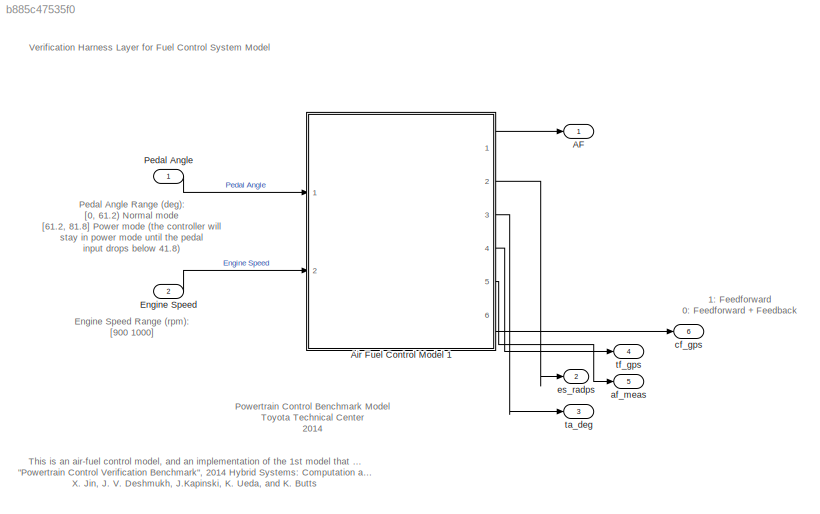
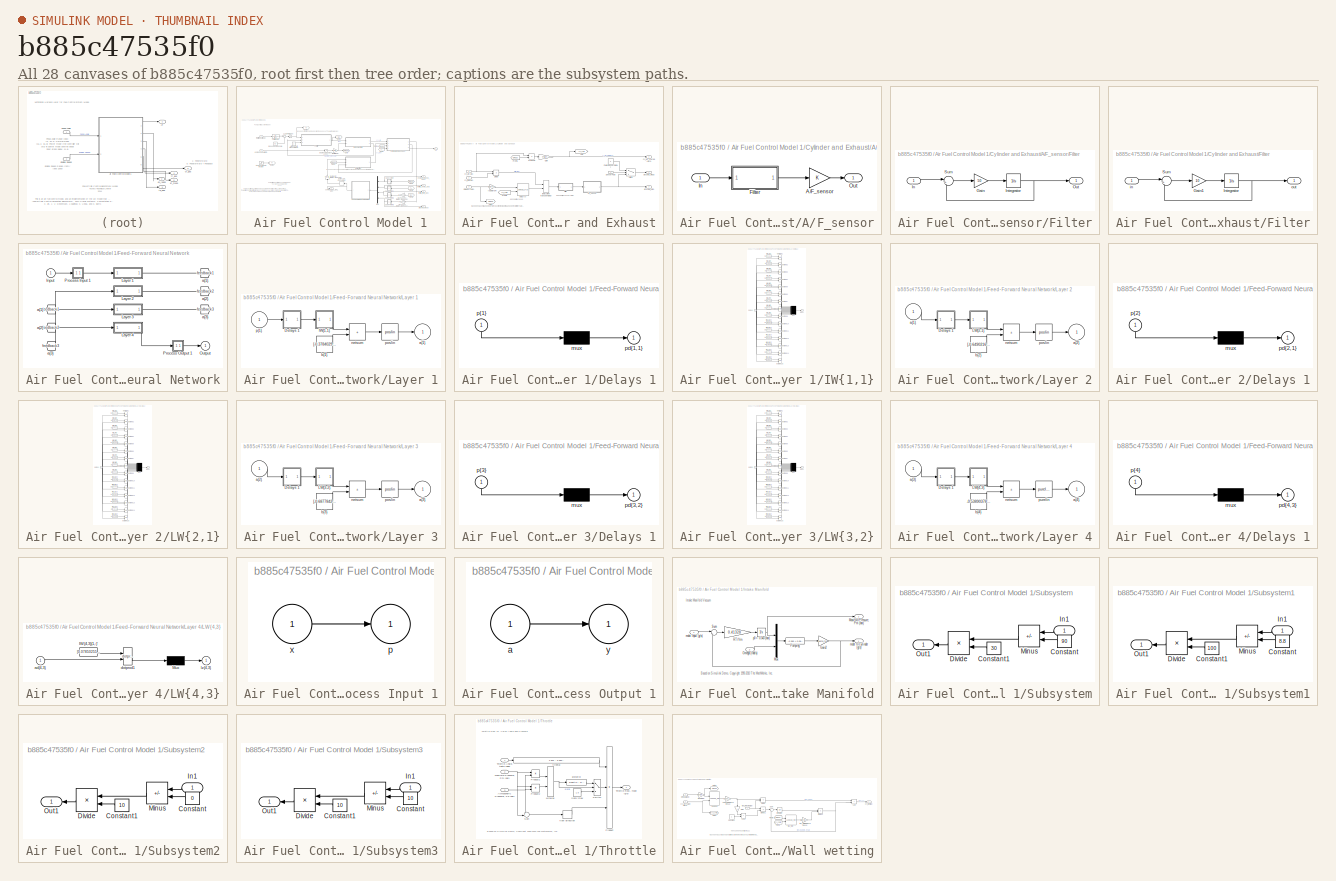
[diagram: thumbnail index - all 28 canvases of the model, root first then tree order]
MODEL slx_b885c47535f0
KIND model
CONFIG AbsTol = auto
CONFIG EnableMultiTasking = off
CONFIG FixedStep = auto
CONFIG MaxStep = .01
CONFIG MinStep = auto
CONFIG RelTol = 1e-3
CONFIG SampleTimeConstraint = Unconstrained
CONFIG Solver = ode15s
CONFIG SolverMode = SingleTasking
CONFIG SolverName = ode15s
CONFIG StartTime = 0.0
CONFIG StopTime = T
BLOCK [Outport] AF
  VectorParamsAs1DForOutWhenUnconnected = off
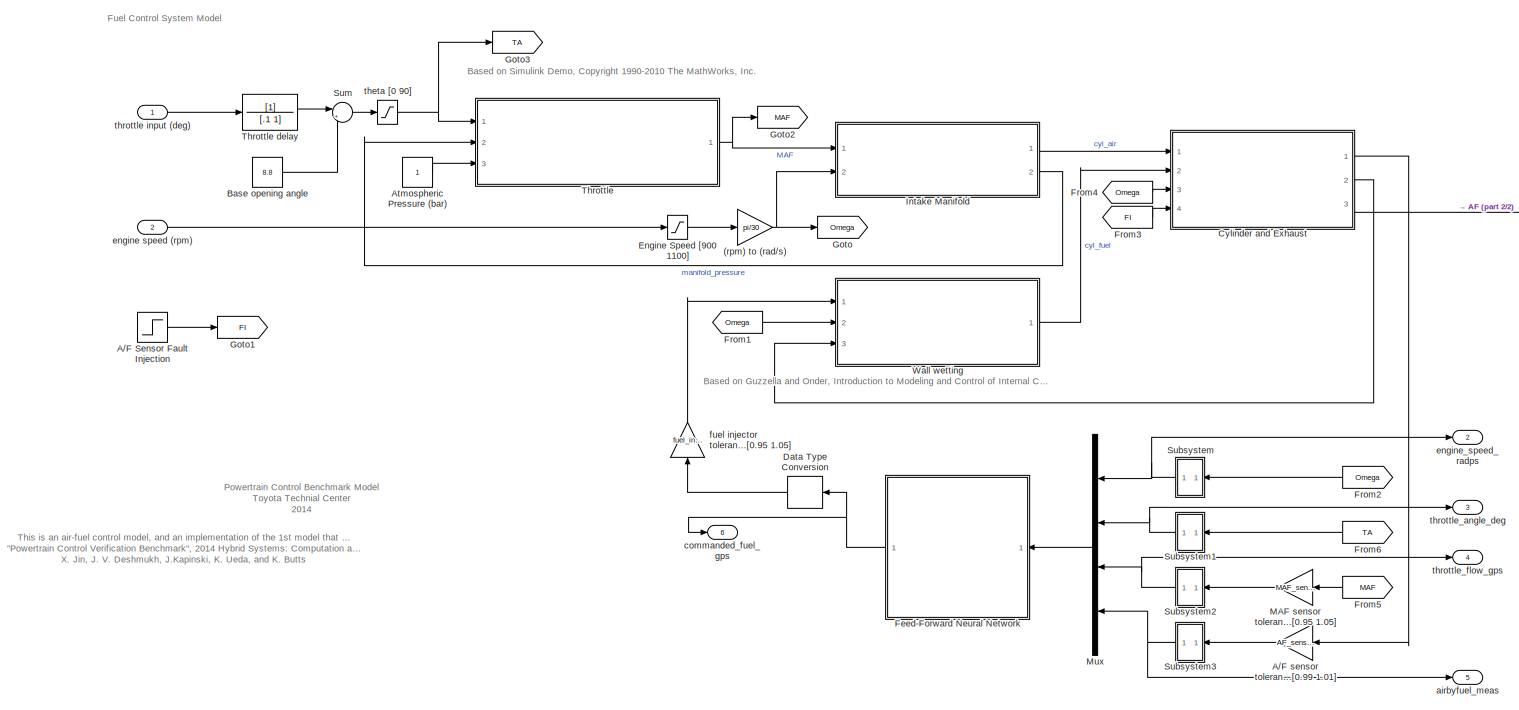
[diagram: Air Fuel Control Model 1 - part 1/2, most of the canvas]
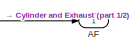
[diagram: Air Fuel Control Model 1 - part 2/2, top right region]
BLOCK [SubSystem] Air Fuel Control Model 1
  Ports = [2, 6]
  Priority = 1
  RequestExecContextInheritance = off
  TreatAsAtomicUnit = on
BLOCK [Gain] Air Fuel Control Model 1/(rpm) to (rad//s)
  Gain = pi/30
BLOCK [Step] Air Fuel Control Model 1/A//F Sensor Fault Injection
  AttributesFormatString = 1: Failure\n0: Normal
  SampleTime = 0
  Time = fault_time
BLOCK [Gain] Air Fuel Control Model 1/A//F sensor tolerance [0.99 1.01]
  Gain = AF_sensor_tol
BLOCK [Outport] Air Fuel Control Model 1/AF
  VectorParamsAs1DForOutWhenUnconnected = off
BLOCK [Constant] Air Fuel Control Model 1/Atmospheric Pressure (bar)
BLOCK [Constant] Air Fuel Control Model 1/Base opening angle
  Value = 8.8
BLOCK [SubSystem] Air Fuel Control Model 1/Cylinder and Exhaust
  Ports = [4, 3]
  RequestExecContextInheritance = off
BLOCK [SubSystem] Air Fuel Control Model 1/Cylinder and Exhaust/A//F_sensor
  Ports = [1, 1]
  RequestExecContextInheritance = off
BLOCK [Gain] Air Fuel Control Model 1/Cylinder and Exhaust/A//F_sensor/A//F_sensor
  OutDataTypeStr = double
BLOCK [SubSystem] Air Fuel Control Model 1/Cylinder and Exhaust/A//F_sensor/Filter
  Ports = [1, 1]
  RequestExecContextInheritance = off
BLOCK [Gain] Air Fuel Control Model 1/Cylinder and Exhaust/A//F_sensor/Filter/Gain
  Gain = 50
BLOCK [Inport] Air Fuel Control Model 1/Cylinder and Exhaust/A//F_sensor/Filter/In
BLOCK [Integrator] Air Fuel Control Model 1/Cylinder and Exhaust/A//F_sensor/Filter/Integrator
  InitialCondition = 14.7
  Ports = [1, 1]
BLOCK [Outport] Air Fuel Control Model 1/Cylinder and Exhaust/A//F_sensor/Filter/Out
  VectorParamsAs1DForOutWhenUnconnected = off
BLOCK [Sum] Air Fuel Control Model 1/Cylinder and Exhaust/A//F_sensor/Filter/Sum
  Inputs = |+-
  Ports = [2, 1]
BLOCK [Inport] Air Fuel Control Model 1/Cylinder and Exhaust/A//F_sensor/In
BLOCK [Outport] Air Fuel Control Model 1/Cylinder and Exhaust/A//F_sensor/Out
  VectorParamsAs1DForOutWhenUnconnected = off
BLOCK [Product] Air Fuel Control Model 1/Cylinder and Exhaust/Divide
  Inputs = */
  Ports = [2, 1]
BLOCK [Constant] Air Fuel Control Model 1/Cylinder and Exhaust/FaultySensorOutput
  Value = -1
BLOCK [SubSystem] Air Fuel Control Model 1/Cylinder and Exhaust/Filter
  Ports = [1, 1]
  RequestExecContextInheritance = off
BLOCK [Gain] Air Fuel Control Model 1/Cylinder and Exhaust/Filter/Gain1
  Gain = 10
BLOCK [Integrator] Air Fuel Control Model 1/Cylinder and Exhaust/Filter/Integrator
  InitialCondition = 14.7
  Ports = [1, 1]
BLOCK [Sum] Air Fuel Control Model 1/Cylinder and Exhaust/Filter/Sum
  Inputs = |+-
  Ports = [2, 1]
BLOCK [Inport] Air Fuel Control Model 1/Cylinder and Exhaust/Filter/in
BLOCK [Outport] Air Fuel Control Model 1/Cylinder and Exhaust/Filter/out
  VectorParamsAs1DForOutWhenUnconnected = off
BLOCK [From] Air Fuel Control Model 1/Cylinder and Exhaust/From1
  GotoTag = Omega
BLOCK [From] Air Fuel Control Model 1/Cylinder and Exhaust/From3
  GotoTag = cyl_chrg
BLOCK [Gain] Air Fuel Control Model 1/Cylinder and Exhaust/Gain
  Gain = 4*pi/4
BLOCK [Goto] Air Fuel Control Model 1/Cylinder and Exhaust/Goto
  GotoTag = cyl_chrg
BLOCK [Goto] Air Fuel Control Model 1/Cylinder and Exhaust/Goto1
  GotoTag = Omega
BLOCK [Inport] Air Fuel Control Model 1/Cylinder and Exhaust/Omega (rad//s)
  Port = 3
BLOCK [Product] Air Fuel Control Model 1/Cylinder and Exhaust/Product1
  Inputs = */
  Ports = [2, 1]
  RndMeth = Zero
BLOCK [Inport] Air Fuel Control Model 1/Cylinder and Exhaust/SensorFault
  Port = 4
BLOCK [Switch] Air Fuel Control Model 1/Cylinder and Exhaust/Switch
  InputSameDT = off
  SaturateOnIntegerOverflow = off
  Threshold = 0.5
BLOCK [Outport] Air Fuel Control Model 1/Cylinder and Exhaust/airbyfue_meas
  VectorParamsAs1DForOutWhenUnconnected = off
BLOCK [Outport] Air Fuel Control Model 1/Cylinder and Exhaust/airbyfuel_mon 
  Port = 3
  VectorParamsAs1DForOutWhenUnconnected = off
BLOCK [Inport] Air Fuel Control Model 1/Cylinder and Exhaust/cyl_air (g//s)
BLOCK [Outport] Air Fuel Control Model 1/Cylinder and Exhaust/cyl_air_charge (g//cyl)
  Port = 2
  VectorParamsAs1DForOutWhenUnconnected = off
BLOCK [Inport] Air Fuel Control Model 1/Cylinder and Exhaust/cyl_fuel (g//s)
  Port = 2
BLOCK [Lookup_n-D] Air Fuel Control Model 1/Cylinder and Exhaust/delay (s)
  BreakpointsForDimension1 = [800,1000,1500,2000,3000]
  BreakpointsForDimension2 = [0.05,0.15,0.2,0.25]
  InputPortMap = u0,u1
  Ports = [2, 1]
  RndMeth = Simplest
  Table = reshape([0.8,0.6,0.4,0.3,0.2,0.4,0.3,0.2,0.2,0.2,0.3,0.25,0.2,0.2,0.2,0.25,0.2,0.2,0.2,0.2],5,4)
  UseLastTableValue = on
BLOCK [VariableTransportDelay] Air Fuel Control Model 1/Cylinder and Exhaust/fuel system transport delay
  InitialOutput = 14.7
  MaximumDelay = 10
  MaximumPoints = 20480
  Ports = [2, 1]
  VariableDelayType = Variable transport delay
BLOCK [Gain] Air Fuel Control Model 1/Cylinder and Exhaust/rad//s to rpm
  Gain = 60/(2*pi)
BLOCK [DataTypeConversion] Air Fuel Control Model 1/Data Type Conversion
  OutDataTypeStr = double
  RndMeth = Floor
  SaturateOnIntegerOverflow = off
BLOCK [Saturate] Air Fuel Control Model 1/Engine Speed [900 1100]
  LowerLimit = 900
  NameLocation = top
  UpperLimit = 1100
BLOCK [SubSystem] Air Fuel Control Model 1/Feed-Forward Neural Network
  Ports = [1, 1]
  RequestExecContextInheritance = off
BLOCK [From] Air Fuel Control Model 1/Feed-Forward Neural Network/ a{1} 
  GotoTag = feedback1
BLOCK [From] Air Fuel Control Model 1/Feed-Forward Neural Network/ a{2} 
  GotoTag = feedback2
BLOCK [From] Air Fuel Control Model 1/Feed-Forward Neural Network/ a{3} 
  GotoTag = feedback3
BLOCK [Inport] Air Fuel Control Model 1/Feed-Forward Neural Network/Input
  PortDimensions = 4
BLOCK [SubSystem] Air Fuel Control Model 1/Feed-Forward Neural Network/Layer 1
  Ports = [1, 1]
  RequestExecContextInheritance = off
BLOCK [SubSystem] Air Fuel Control Model 1/Feed-Forward Neural Network/Layer 1/Delays 1
  Ports = [1, 1]
  RequestExecContextInheritance = off
BLOCK [Mux] Air Fuel Control Model 1/Feed-Forward Neural Network/Layer 1/Delays 1/mux
  Inputs = 1
  Ports = [1, 1]
BLOCK [Outport] Air Fuel Control Model 1/Feed-Forward Neural Network/Layer 1/Delays 1/pd{1,1}
BLOCK [Inport] Air Fuel Control Model 1/Feed-Forward Neural Network/Layer 1/Delays 1/p{1}
  NameLocation = left
  PortDimensions = 4
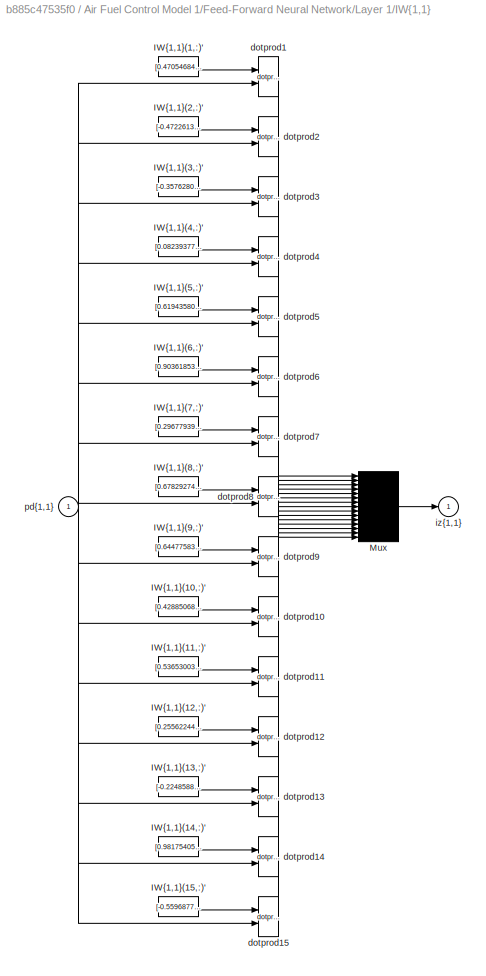
BLOCK [SubSystem] Air Fuel Control Model 1/Feed-Forward Neural Network/Layer 1/IW{1,1}
  Ports = [1, 1]
  RequestExecContextInheritance = off
BLOCK [Constant] Air Fuel Control Model 1/Feed-Forward Neural Network/Layer 1/IW{1,1}/IW{1,1}(1,:)'
  Value = [0.4705468476776843989028975556720979511737823486328125;0.3522261075085328929645811513182707130908966064453125;-0.41706139651212570385041544795967638492584228515625;-0.5655398291066260352266681366018019616603851318359375]
BLOCK [Constant] Air Fuel Control Model 1/Feed-Forward Neural Network/Layer 1/IW{1,1}/IW{1,1}(10,:)'
  Value = [0.428850686118378454647626085716183297336101531982421875;-0.2178636915355633141277991171591565944254398345947265625;-0.09999383227347181934963060712107107974588871002197265625;0.1494795167740230190656092190693016164004802703857421875]
BLOCK [Constant] Air Fuel Control Model 1/Feed-Forward Neural Network/Layer 1/IW{1,1}/IW{1,1}(11,:)'
  Value = [0.53653003766862117362990147739765234291553497314453125;-0.25711983374779723288128252534079365432262420654296875;-0.1291812934673941815066910976383951492607593536376953125;0.76416518707926084363890595341217704117298126220703125]
BLOCK [Constant] Air Fuel Control Model 1/Feed-Forward Neural Network/Layer 1/IW{1,1}/IW{1,1}(12,:)'
  Value = [0.2556224402436140241690054608625359833240509033203125;0.679495754012227504148313528276048600673675537109375;0.0149687143589776194829710220801644027233123779296875;-0.898997352715460440464312341646291315555572509765625]
BLOCK [Constant] Air Fuel Control Model 1/Feed-Forward Neural Network/Layer 1/IW{1,1}/IW{1,1}(13,:)'
  Value = [-0.224858888363902387208526079120929352939128875732421875;-0.2072651342511535599300032117753289639949798583984375;-0.41887750371890408729314003721810877323150634765625;0.0994602122030908974981144865523674525320529937744140625]
BLOCK [Constant] Air Fuel Control Model 1/Feed-Forward Neural Network/Layer 1/IW{1,1}/IW{1,1}(14,:)'
  Value = [0.98175405697122120063369266063091345131397247314453125;-0.1932146478730102090448639273745357058942317962646484375;0.382229902325077308677947485193726606667041778564453125;-0.93458962018648017444633069317205809056758880615234375]
BLOCK [Constant] Air Fuel Control Model 1/Feed-Forward Neural Network/Layer 1/IW{1,1}/IW{1,1}(15,:)'
  Value = [-0.5596877064224321518537408337579108774662017822265625;0.603920628277483384493962148553691804409027099609375;0.5416104653359894438580113273928873240947723388671875;-0.268537491076955348034971393644809722900390625]
BLOCK [Constant] Air Fuel Control Model 1/Feed-Forward Neural Network/Layer 1/IW{1,1}/IW{1,1}(2,:)'
  Value = [-0.4722613318672996829405974494875408709049224853515625;0.635474292721358580138257821090519428253173828125;-0.5101430309479291214103113816236145794391632080078125;-0.20584778049076390971094951964914798736572265625]
BLOCK [Constant] Air Fuel Control Model 1/Feed-Forward Neural Network/Layer 1/IW{1,1}/IW{1,1}(3,:)'
  Value = [-0.357628063203586865625993596040643751621246337890625;0.2071704377327181767487473962319199927151203155517578125;0.1619071776068128631909104342412319965660572052001953125;-0.301187601673007121494407556383521296083927154541015625]
BLOCK [Constant] Air Fuel Control Model 1/Feed-Forward Neural Network/Layer 1/IW{1,1}/IW{1,1}(4,:)'
  Value = [0.0823937737814477433317961185821332037448883056640625;0.388049902110520594789022652548737823963165283203125;-0.343951615949410705042055269586853682994842529296875;-0.3587308065810399515527251423918642103672027587890625]
BLOCK [Constant] Air Fuel Control Model 1/Feed-Forward Neural Network/Layer 1/IW{1,1}/IW{1,1}(5,:)'
  Value = [0.61943580699205502693160951821482740342617034912109375;-0.09997860637011568574195052860886789858341217041015625;0.6313747851067834648830512378481216728687286376953125;0.13780420849466390453841313501470722258090972900390625]
BLOCK [Constant] Air Fuel Control Model 1/Feed-Forward Neural Network/Layer 1/IW{1,1}/IW{1,1}(6,:)'
  Value = [0.9036185323422898374445821900735609233379364013671875;-0.83178512693562856039619646253413520753383636474609375;0.0776563936506066421205929373172693885862827301025390625;-0.006448506517673760311815112089561807806603610515594482421875]
BLOCK [Constant] Air Fuel Control Model 1/Feed-Forward Neural Network/Layer 1/IW{1,1}/IW{1,1}(7,:)'
  Value = [0.2967793979992208175389123425702564418315887451171875;0.854286201585548798931313285720534622669219970703125;-0.8480508146009508863016890245489776134490966796875;-0.0668013130746889505218177873757667839527130126953125]
BLOCK [Constant] Air Fuel Control Model 1/Feed-Forward Neural Network/Layer 1/IW{1,1}/IW{1,1}(8,:)'
  Value = [0.67829274349883206252087575194309465587139129638671875;-0.8193701880597179521004136404371820390224456787109375;0.86612414679872340439459321714821271598339080810546875;0.1955261159795254055637769852182827889919281005859375]
BLOCK [Constant] Air Fuel Control Model 1/Feed-Forward Neural Network/Layer 1/IW{1,1}/IW{1,1}(9,:)'
  Value = [0.64477583408766658834565532742999494075775146484375;-0.20187027439609928070041178216342814266681671142578125;-0.2429806709918595208907987625934765674173831939697265625;0.7311885200031029707901097935973666608333587646484375]
BLOCK [Mux] Air Fuel Control Model 1/Feed-Forward Neural Network/Layer 1/IW{1,1}/Mux
  Inputs = 15
  Ports = [15, 1]
BLOCK [Reference] Air Fuel Control Model 1/Feed-Forward Neural Network/Layer 1/IW{1,1}/dotprod1  REF=neural/Weight Functions/dotprod
  Ports = [2, 1]
  SourceBlock = neural/Weight Functions/dotprod
  SourceProductBaseCode = NN
  SourceType = DOTPROD
BLOCK [Reference] Air Fuel Control Model 1/Feed-Forward Neural Network/Layer 1/IW{1,1}/dotprod10  REF=neural/Weight Functions/dotprod
  Ports = [2, 1]
  SourceBlock = neural/Weight Functions/dotprod
  SourceProductBaseCode = NN
  SourceType = DOTPROD
BLOCK [Reference] Air Fuel Control Model 1/Feed-Forward Neural Network/Layer 1/IW{1,1}/dotprod11  REF=neural/Weight Functions/dotprod
  Ports = [2, 1]
  SourceBlock = neural/Weight Functions/dotprod
  SourceProductBaseCode = NN
  SourceType = DOTPROD
BLOCK [Reference] Air Fuel Control Model 1/Feed-Forward Neural Network/Layer 1/IW{1,1}/dotprod12  REF=neural/Weight Functions/dotprod
  Ports = [2, 1]
  SourceBlock = neural/Weight Functions/dotprod
  SourceProductBaseCode = NN
  SourceType = DOTPROD
BLOCK [Reference] Air Fuel Control Model 1/Feed-Forward Neural Network/Layer 1/IW{1,1}/dotprod13  REF=neural/Weight Functions/dotprod
  Ports = [2, 1]
  SourceBlock = neural/Weight Functions/dotprod
  SourceProductBaseCode = NN
  SourceType = DOTPROD
BLOCK [Reference] Air Fuel Control Model 1/Feed-Forward Neural Network/Layer 1/IW{1,1}/dotprod14  REF=neural/Weight Functions/dotprod
  Ports = [2, 1]
  SourceBlock = neural/Weight Functions/dotprod
  SourceProductBaseCode = NN
  SourceType = DOTPROD
BLOCK [Reference] Air Fuel Control Model 1/Feed-Forward Neural Network/Layer 1/IW{1,1}/dotprod15  REF=neural/Weight Functions/dotprod
  Ports = [2, 1]
  SourceBlock = neural/Weight Functions/dotprod
  SourceProductBaseCode = NN
  SourceType = DOTPROD
BLOCK [Reference] Air Fuel Control Model 1/Feed-Forward Neural Network/Layer 1/IW{1,1}/dotprod2  REF=neural/Weight Functions/dotprod
  Ports = [2, 1]
  SourceBlock = neural/Weight Functions/dotprod
  SourceProductBaseCode = NN
  SourceType = DOTPROD
BLOCK [Reference] Air Fuel Control Model 1/Feed-Forward Neural Network/Layer 1/IW{1,1}/dotprod3  REF=neural/Weight Functions/dotprod
  Ports = [2, 1]
  SourceBlock = neural/Weight Functions/dotprod
  SourceProductBaseCode = NN
  SourceType = DOTPROD
BLOCK [Reference] Air Fuel Control Model 1/Feed-Forward Neural Network/Layer 1/IW{1,1}/dotprod4  REF=neural/Weight Functions/dotprod
  Ports = [2, 1]
  SourceBlock = neural/Weight Functions/dotprod
  SourceProductBaseCode = NN
  SourceType = DOTPROD
BLOCK [Reference] Air Fuel Control Model 1/Feed-Forward Neural Network/Layer 1/IW{1,1}/dotprod5  REF=neural/Weight Functions/dotprod
  Ports = [2, 1]
  SourceBlock = neural/Weight Functions/dotprod
  SourceProductBaseCode = NN
  SourceType = DOTPROD
BLOCK [Reference] Air Fuel Control Model 1/Feed-Forward Neural Network/Layer 1/IW{1,1}/dotprod6  REF=neural/Weight Functions/dotprod
  Ports = [2, 1]
  SourceBlock = neural/Weight Functions/dotprod
  SourceProductBaseCode = NN
  SourceType = DOTPROD
BLOCK [Reference] Air Fuel Control Model 1/Feed-Forward Neural Network/Layer 1/IW{1,1}/dotprod7  REF=neural/Weight Functions/dotprod
  Ports = [2, 1]
  SourceBlock = neural/Weight Functions/dotprod
  SourceProductBaseCode = NN
  SourceType = DOTPROD
BLOCK [Reference] Air Fuel Control Model 1/Feed-Forward Neural Network/Layer 1/IW{1,1}/dotprod8  REF=neural/Weight Functions/dotprod
  Ports = [2, 1]
  SourceBlock = neural/Weight Functions/dotprod
  SourceProductBaseCode = NN
  SourceType = DOTPROD
BLOCK [Reference] Air Fuel Control Model 1/Feed-Forward Neural Network/Layer 1/IW{1,1}/dotprod9  REF=neural/Weight Functions/dotprod
  Ports = [2, 1]
  SourceBlock = neural/Weight Functions/dotprod
  SourceProductBaseCode = NN
  SourceType = DOTPROD
BLOCK [Outport] Air Fuel Control Model 1/Feed-Forward Neural Network/Layer 1/IW{1,1}/iz{1,1}
BLOCK [Inport] Air Fuel Control Model 1/Feed-Forward Neural Network/Layer 1/IW{1,1}/pd{1,1}
  PortDimensions = 4
BLOCK [Outport] Air Fuel Control Model 1/Feed-Forward Neural Network/Layer 1/a{1}
  InitialOutput = [0;0;0;0;0;0;0;0;0;0;0;0;0;0;0]
BLOCK [Constant] Air Fuel Control Model 1/Feed-Forward Neural Network/Layer 1/b{1}
  Value = [-0.378402949730329840605236313422210514545440673828125;-0.225193952042958667192351640551351010799407958984375;0.04344511002489791218206249823197140358388423919677734375;0.013816119273463822736403017188422381877899169921875;0.75040405160170653431350729078985750675201416015625;0.07529169300784359364353548471626709215342998504638671875;-0.9803090120788395811501914067775942385196685791015625;0.002850...<+446ch>
BLOCK [Sum] Air Fuel Control Model 1/Feed-Forward Neural Network/Layer 1/netsum
  IconShape = rectangular
  InputSameDT = on
  Inputs = 2
  OutDataTypeStr = Inherit: Same as first input
  Ports = [2, 1]
  SaturateOnIntegerOverflow = on
BLOCK [Reference] Air Fuel Control Model 1/Feed-Forward Neural Network/Layer 1/poslin  REF=neural/Transfer Functions/poslin
  Ports = [1, 1]
  SourceBlock = neural/Transfer Functions/poslin
  SourceProductBaseCode = NN
  SourceType = POSLIN
BLOCK [Inport] Air Fuel Control Model 1/Feed-Forward Neural Network/Layer 1/p{1}
  PortDimensions = 4
BLOCK [SubSystem] Air Fuel Control Model 1/Feed-Forward Neural Network/Layer 2
  Ports = [1, 1]
  RequestExecContextInheritance = off
BLOCK [SubSystem] Air Fuel Control Model 1/Feed-Forward Neural Network/Layer 2/Delays 1
  Ports = [1, 1]
  RequestExecContextInheritance = off
BLOCK [Mux] Air Fuel Control Model 1/Feed-Forward Neural Network/Layer 2/Delays 1/mux
  Inputs = 1
  Ports = [1, 1]
BLOCK [Outport] Air Fuel Control Model 1/Feed-Forward Neural Network/Layer 2/Delays 1/pd{2,1}
BLOCK [Inport] Air Fuel Control Model 1/Feed-Forward Neural Network/Layer 2/Delays 1/p{2}
  NameLocation = left
  PortDimensions = 15
BLOCK [SubSystem] Air Fuel Control Model 1/Feed-Forward Neural Network/Layer 2/LW{2,1}
  Ports = [1, 1]
  RequestExecContextInheritance = off
BLOCK [Constant] Air Fuel Control Model 1/Feed-Forward Neural Network/Layer 2/LW{2,1}/IW{2,1}(1,:)'
  Value = [0.0014723788564683371049568449961952865123748779296875;-0.4105035744953438037185833309195004403591156005859375;0.92504607137404970540472959328326396644115447998046875;-0.13140968467763602944842205033637583255767822265625;0.88617470350879212759309666580520570278167724609375;0.10943690712673904974483463092838064767420291900634765625;0.8357847560107405371354616363532841205596923828125;-0.14242173551...<+444ch>
BLOCK [Constant] Air Fuel Control Model 1/Feed-Forward Neural Network/Layer 2/LW{2,1}/IW{2,1}(10,:)'
  Value = [-0.8797160876685172770095277883228845894336700439453125;0.789339370544755780656487331725656986236572265625;-0.7233137151600008696306076672044582664966583251953125;0.6015191081513704407512932448298670351505279541015625;-0.11263426835994684582775704484447487629950046539306640625;0.8415776576411524434462307908688671886920928955078125;-0.2980449987010034273993142051040194928646087646484375;-0.1718433...<+428ch>
BLOCK [Constant] Air Fuel Control Model 1/Feed-Forward Neural Network/Layer 2/LW{2,1}/IW{2,1}(11,:)'
  Value = [0.5636405468410743413443242388893850147724151611328125;-0.6000555782086010037090773039381019771099090576171875;-0.9083589997321432907284588509355671703815460205078125;-0.039439145748280335368463056511245667934417724609375;-0.360599567968600986933580543336574919521808624267578125;-0.9013962864403468611129710552631877362728118896484375;0.818131379099671374177660254645161330699920654296875;0.2148021...<+438ch>
BLOCK [Constant] Air Fuel Control Model 1/Feed-Forward Neural Network/Layer 2/LW{2,1}/IW{2,1}(12,:)'
  Value = [0.176025910561064424797450556070543825626373291015625;0.8938959851841807857653066093917004764080047607421875;0.23024565712716604792831276427023112773895263671875;0.5912002453814280134025693769217468798160552978515625;-0.13767899499483693404044970520772039890289306640625;0.39561104597748197875262121669948101043701171875;-0.551936271474654294166839463287033140659332275390625;-0.30335164439321071760...<+418ch>
BLOCK [Constant] Air Fuel Control Model 1/Feed-Forward Neural Network/Layer 2/LW{2,1}/IW{2,1}(13,:)'
  Value = [0.5238180293357050931746243804809637367725372314453125;0.4144582229988842403400894909282214939594268798828125;-0.71210330551954204025832950719632208347320556640625;-0.2764686429265024170121023416868411004543304443359375;0.84370835682129097232717640508781187236309051513671875;-0.58371761794929810651666457488317973911762237548828125;-0.647040471028641928086244661244563758373260498046875;-0.02572927...<+446ch>
BLOCK [Constant] Air Fuel Control Model 1/Feed-Forward Neural Network/Layer 2/LW{2,1}/IW{2,1}(14,:)'
  Value = [-0.5139466655833884178861126201809383928775787353515625;-0.6994970916207192690450256122858263552188873291015625;0.02461016033035413885787789922687807120382785797119140625;-0.2071609556260745055311645046458579599857330322265625;0.62690154518222629409507362652220763266086578369140625;-0.68570881908632952406179583704215474426746368408203125;0.6935255351681650637374332291074097156524658203125;0.22748...<+445ch>
BLOCK [Constant] Air Fuel Control Model 1/Feed-Forward Neural Network/Layer 2/LW{2,1}/IW{2,1}(15,:)'
  Value = [-0.4257835090962220903065826860256493091583251953125;0.7545482545397168561152057009167037904262542724609375;0.693650957176581872687393115484155714511871337890625;-0.6058271909569750146573596794041804969310760498046875;-0.92243298192882450248220038702129386365413665771484375;0.463413219568864220843096290991525165736675262451171875;0.338649245461934089718170071137137711048126220703125;0.48476380782...<+432ch>
BLOCK [Constant] Air Fuel Control Model 1/Feed-Forward Neural Network/Layer 2/LW{2,1}/IW{2,1}(2,:)'
  Value = [-0.004672057704449006365621244185604155063629150390625;0.9755623302918092765168012192589230835437774658203125;-0.2802782291596883634809955765376798808574676513671875;0.530568769281649199598405175493098795413970947265625;-0.3711149592822611253950526588596403598785400390625;-0.6701597425193110968422161022317595779895782470703125;0.48671231916720270049836472026072442531585693359375;-0.74341263137865...<+414ch>
BLOCK [Constant] Air Fuel Control Model 1/Feed-Forward Neural Network/Layer 2/LW{2,1}/IW{2,1}(3,:)'
  Value = [-0.097621320133909339489264311851002275943756103515625;0.2612783169119214932152317487634718418121337890625;-0.055215070832447997462022470926967798732221126556396484375;0.8160125298612683764076791703701019287109375;0.65646477091284527460857134428806602954864501953125;-0.19085913401025933477939133808831684291362762451171875;0.3087414420961487326877659143065102398395538330078125;0.922487697197122757...<+423ch>
BLOCK [Constant] Air Fuel Control Model 1/Feed-Forward Neural Network/Layer 2/LW{2,1}/IW{2,1}(4,:)'
  Value = [-0.0558030826137325686175927330623380839824676513671875;0.4347023464860020336431034593260847032070159912109375;0.275440674566879317719525488428189419209957122802734375;-0.25350814443316949109430424869060516357421875;0.381186478547256124560504986220621503889560699462890625;-0.53969236281862009718679473735392093658447265625;0.3138820723565487469386425800621509552001953125;0.314206063773635080327295...<+420ch>
BLOCK [Constant] Air Fuel Control Model 1/Feed-Forward Neural Network/Layer 2/LW{2,1}/IW{2,1}(5,:)'
  Value = [0.7260418483791071242450243516941554844379425048828125;-0.2323204701209327094346690500969998538494110107421875;0.58094310317328190507168983458541333675384521484375;-0.10149087657121658168080102768726646900177001953125;0.017385472622406965281793844724234077148139476776123046875;-0.2465918696556105016437498989034793339669704437255859375;-0.065147713611995783367092371918261051177978515625;0.82285250...<+434ch>
BLOCK [Constant] Air Fuel Control Model 1/Feed-Forward Neural Network/Layer 2/LW{2,1}/IW{2,1}(6,:)'
  Value = [-0.1207748365903345000305080247926525771617889404296875;-0.4566001292990182758302353249746374785900115966796875;0.7674321577875711231087052510702051222324371337890625;0.532782020818384882687723802519030869007110595703125;-0.5503302152362241628225092426873743534088134765625;-0.870981104051296473045340462704189121723175048828125;-0.3023547547324063611284827857161872088909149169921875;0.235729947237...<+421ch>
BLOCK [Constant] Air Fuel Control Model 1/Feed-Forward Neural Network/Layer 2/LW{2,1}/IW{2,1}(7,:)'
  Value = [-0.8175875722366179321198842444573529064655303955078125;-0.905813293112641471083179567358456552028656005859375;-0.3844932577919755178896821234957315027713775634765625;0.2056336354930061727230850010528229176998138427734375;-0.76141972218104125857962571899406611919403076171875;-0.9439776643957298318809989723376929759979248046875;0.6997489290599505640244615278788842260837554931640625;0.8655339347746...<+425ch>
BLOCK [Constant] Air Fuel Control Model 1/Feed-Forward Neural Network/Layer 2/LW{2,1}/IW{2,1}(8,:)'
  Value = [-0.8387502705666316504817814347916282713413238525390625;-0.9869927371518103509373531778692267835140228271484375;-0.049215002141873132046612226986326277256011962890625;-0.6725714957969464169451612178818322718143463134765625;-0.41634711954292225044582664850167930126190185546875;-0.0546792633337906952561979778693057596683502197265625;0.067250214964079901847071596421301364898681640625;0.9533266677432...<+420ch>
BLOCK [Constant] Air Fuel Control Model 1/Feed-Forward Neural Network/Layer 2/LW{2,1}/IW{2,1}(9,:)'
  Value = [-0.289761843282438036339954123832285404205322265625;0.729056578900638907470010963152162730693817138671875;-0.9706045169635231228966176786343567073345184326171875;0.048643020949121318352581511135213077068328857421875;-0.801736747087760104335529831587336957454681396484375;0.146439016247541520243657942046411335468292236328125;0.01347836954570791334617751999758183956146240234375;-0.983846592909062289...<+416ch>
BLOCK [Mux] Air Fuel Control Model 1/Feed-Forward Neural Network/Layer 2/LW{2,1}/Mux
  Inputs = 15
  Ports = [15, 1]
BLOCK [Inport] Air Fuel Control Model 1/Feed-Forward Neural Network/Layer 2/LW{2,1}/ad{2,1}
  PortDimensions = 15
BLOCK [Reference] Air Fuel Control Model 1/Feed-Forward Neural Network/Layer 2/LW{2,1}/dotprod1  REF=neural/Weight Functions/dotprod
  Ports = [2, 1]
  SourceBlock = neural/Weight Functions/dotprod
  SourceProductBaseCode = NN
  SourceType = DOTPROD
BLOCK [Reference] Air Fuel Control Model 1/Feed-Forward Neural Network/Layer 2/LW{2,1}/dotprod10  REF=neural/Weight Functions/dotprod
  Ports = [2, 1]
  SourceBlock = neural/Weight Functions/dotprod
  SourceProductBaseCode = NN
  SourceType = DOTPROD
BLOCK [Reference] Air Fuel Control Model 1/Feed-Forward Neural Network/Layer 2/LW{2,1}/dotprod11  REF=neural/Weight Functions/dotprod
  Ports = [2, 1]
  SourceBlock = neural/Weight Functions/dotprod
  SourceProductBaseCode = NN
  SourceType = DOTPROD
BLOCK [Reference] Air Fuel Control Model 1/Feed-Forward Neural Network/Layer 2/LW{2,1}/dotprod12  REF=neural/Weight Functions/dotprod
  Ports = [2, 1]
  SourceBlock = neural/Weight Functions/dotprod
  SourceProductBaseCode = NN
  SourceType = DOTPROD
BLOCK [Reference] Air Fuel Control Model 1/Feed-Forward Neural Network/Layer 2/LW{2,1}/dotprod13  REF=neural/Weight Functions/dotprod
  Ports = [2, 1]
  SourceBlock = neural/Weight Functions/dotprod
  SourceProductBaseCode = NN
  SourceType = DOTPROD
BLOCK [Reference] Air Fuel Control Model 1/Feed-Forward Neural Network/Layer 2/LW{2,1}/dotprod14  REF=neural/Weight Functions/dotprod
  Ports = [2, 1]
  SourceBlock = neural/Weight Functions/dotprod
  SourceProductBaseCode = NN
  SourceType = DOTPROD
BLOCK [Reference] Air Fuel Control Model 1/Feed-Forward Neural Network/Layer 2/LW{2,1}/dotprod15  REF=neural/Weight Functions/dotprod
  Ports = [2, 1]
  SourceBlock = neural/Weight Functions/dotprod
  SourceProductBaseCode = NN
  SourceType = DOTPROD
BLOCK [Reference] Air Fuel Control Model 1/Feed-Forward Neural Network/Layer 2/LW{2,1}/dotprod2  REF=neural/Weight Functions/dotprod
  Ports = [2, 1]
  SourceBlock = neural/Weight Functions/dotprod
  SourceProductBaseCode = NN
  SourceType = DOTPROD
BLOCK [Reference] Air Fuel Control Model 1/Feed-Forward Neural Network/Layer 2/LW{2,1}/dotprod3  REF=neural/Weight Functions/dotprod
  Ports = [2, 1]
  SourceBlock = neural/Weight Functions/dotprod
  SourceProductBaseCode = NN
  SourceType = DOTPROD
BLOCK [Reference] Air Fuel Control Model 1/Feed-Forward Neural Network/Layer 2/LW{2,1}/dotprod4  REF=neural/Weight Functions/dotprod
  Ports = [2, 1]
  SourceBlock = neural/Weight Functions/dotprod
  SourceProductBaseCode = NN
  SourceType = DOTPROD
BLOCK [Reference] Air Fuel Control Model 1/Feed-Forward Neural Network/Layer 2/LW{2,1}/dotprod5  REF=neural/Weight Functions/dotprod
  Ports = [2, 1]
  SourceBlock = neural/Weight Functions/dotprod
  SourceProductBaseCode = NN
  SourceType = DOTPROD
BLOCK [Reference] Air Fuel Control Model 1/Feed-Forward Neural Network/Layer 2/LW{2,1}/dotprod6  REF=neural/Weight Functions/dotprod
  Ports = [2, 1]
  SourceBlock = neural/Weight Functions/dotprod
  SourceProductBaseCode = NN
  SourceType = DOTPROD
BLOCK [Reference] Air Fuel Control Model 1/Feed-Forward Neural Network/Layer 2/LW{2,1}/dotprod7  REF=neural/Weight Functions/dotprod
  Ports = [2, 1]
  SourceBlock = neural/Weight Functions/dotprod
  SourceProductBaseCode = NN
  SourceType = DOTPROD
BLOCK [Reference] Air Fuel Control Model 1/Feed-Forward Neural Network/Layer 2/LW{2,1}/dotprod8  REF=neural/Weight Functions/dotprod
  Ports = [2, 1]
  SourceBlock = neural/Weight Functions/dotprod
  SourceProductBaseCode = NN
  SourceType = DOTPROD
BLOCK [Reference] Air Fuel Control Model 1/Feed-Forward Neural Network/Layer 2/LW{2,1}/dotprod9  REF=neural/Weight Functions/dotprod
  Ports = [2, 1]
  SourceBlock = neural/Weight Functions/dotprod
  SourceProductBaseCode = NN
  SourceType = DOTPROD
BLOCK [Outport] Air Fuel Control Model 1/Feed-Forward Neural Network/Layer 2/LW{2,1}/lz{2,1}
BLOCK [Inport] Air Fuel Control Model 1/Feed-Forward Neural Network/Layer 2/a{1} 
  PortDimensions = 15
BLOCK [Outport] Air Fuel Control Model 1/Feed-Forward Neural Network/Layer 2/a{2}
  InitialOutput = [0;0;0;0;0;0;0;0;0;0;0;0;0;0;0]
BLOCK [Constant] Air Fuel Control Model 1/Feed-Forward Neural Network/Layer 2/b{2}
  Value = [-0.6490216625206632894418135037994943559169769287109375;-0.097262144797785499150677424040623009204864501953125;-0.414035221027521771475221612490713596343994140625;0.355647189850159917146044108449132181704044342041015625;-0.447080509480746679518148312126868404448032379150390625;-0.994762113391652658123121000244282186031341552734375;-0.1996184290065150523929560222313739359378814697265625;-0.8930597...<+440ch>
BLOCK [Sum] Air Fuel Control Model 1/Feed-Forward Neural Network/Layer 2/netsum
  IconShape = rectangular
  InputSameDT = on
  Inputs = 2
  OutDataTypeStr = Inherit: Same as first input
  Ports = [2, 1]
  SaturateOnIntegerOverflow = on
BLOCK [Reference] Air Fuel Control Model 1/Feed-Forward Neural Network/Layer 2/poslin  REF=neural/Transfer Functions/poslin
  Ports = [1, 1]
  SourceBlock = neural/Transfer Functions/poslin
  SourceProductBaseCode = NN
  SourceType = POSLIN
BLOCK [SubSystem] Air Fuel Control Model 1/Feed-Forward Neural Network/Layer 3
  Ports = [1, 1]
  RequestExecContextInheritance = off
BLOCK [SubSystem] Air Fuel Control Model 1/Feed-Forward Neural Network/Layer 3/Delays 1
  Ports = [1, 1]
  RequestExecContextInheritance = off
BLOCK [Mux] Air Fuel Control Model 1/Feed-Forward Neural Network/Layer 3/Delays 1/mux
  Inputs = 1
  Ports = [1, 1]
BLOCK [Outport] Air Fuel Control Model 1/Feed-Forward Neural Network/Layer 3/Delays 1/pd{3,2}
BLOCK [Inport] Air Fuel Control Model 1/Feed-Forward Neural Network/Layer 3/Delays 1/p{3}
  NameLocation = left
  PortDimensions = 15
BLOCK [SubSystem] Air Fuel Control Model 1/Feed-Forward Neural Network/Layer 3/LW{3,2}
  Ports = [1, 1]
  RequestExecContextInheritance = off
BLOCK [Constant] Air Fuel Control Model 1/Feed-Forward Neural Network/Layer 3/LW{3,2}/IW{3,2}(1,:)'
  Value = [0.7211495685398465749216256881481967866420745849609375;-0.1560525184820991118073152392753399908542633056640625;-0.7353140609977757424786659612436778843402862548828125;0.89383587442760958907683743746019899845123291015625;0.7517978237884952452674269807175733149051666259765625;-0.8645074614204755203417107622954063117504119873046875;-0.5271368049894198382077092901454307138919830322265625;-0.824255417...<+426ch>
BLOCK [Constant] Air Fuel Control Model 1/Feed-Forward Neural Network/Layer 3/LW{3,2}/IW{3,2}(10,:)'
  Value = [-0.9555669862685267634816455029067583382129669189453125;0.394863125416177407345230676583014428615570068359375;-0.8520224955936603894457448404864408075809478759765625;-0.225951935749418186816228626412339508533477783203125;0.631217772021331224863160969107411801815032958984375;-0.8237425820303092560692448387271724641323089599609375;-0.0564082446703031425982999280677177011966705322265625;-0.912401721...<+421ch>
BLOCK [Constant] Air Fuel Control Model 1/Feed-Forward Neural Network/Layer 3/LW{3,2}/IW{3,2}(11,:)'
  Value = [0.5413312511294143813955770383472554385662078857421875;0.70632467122050446306502635707147419452667236328125;-0.3807065228012571633797733738902024924755096435546875;0.3517480021825145630742781577282585203647613525390625;-0.4236771228098719088706047841696999967098236083984375;-0.6516701658588111012448962355847470462322235107421875;0.1169621799832769593052717027603648602962493896484375;-0.2843349846...<+427ch>
BLOCK [Constant] Air Fuel Control Model 1/Feed-Forward Neural Network/Layer 3/LW{3,2}/IW{3,2}(12,:)'
  Value = [0.507363264064779162509921661694534122943878173828125;-0.292115174483057682408571054111234843730926513671875;0.513324654934169899433982209302484989166259765625;-0.5837418080754954718969429450226016342639923095703125;-0.953780108028102091566324816085398197174072265625;0.2187928995518306773959693600772880017757415771484375;-0.06677646643976942186782252974808216094970703125;-0.9388563306973987110382...<+409ch>
BLOCK [Constant] Air Fuel Control Model 1/Feed-Forward Neural Network/Layer 3/LW{3,2}/IW{3,2}(13,:)'
  Value = [0.013368481177302153628527747741827624849975109100341796875;-0.323601064657340398156293304054997861385345458984375;-0.3727497600216291839814175546052865684032440185546875;0.0707149214661739466958323419021326117217540740966796875;0.58106740396620282229633858150918968021869659423828125;-0.812636642629665839621111445012502372264862060546875;-0.6019297525288085370931412398931570351123809814453125;-0....<+435ch>
BLOCK [Constant] Air Fuel Control Model 1/Feed-Forward Neural Network/Layer 3/LW{3,2}/IW{3,2}(14,:)'
  Value = [0.4592163700034797013671550303115509450435638427734375;-0.780987176718388464990994179970584809780120849609375;-0.75068584783817815520023941644467413425445556640625;0.927478570310972916246328168199397623538970947265625;0.43642317428064902884443654329515993595123291015625;-0.5740108704863466915213621177827008068561553955078125;-0.0110900874857573494836060490342788398265838623046875;-0.2153418357139...<+426ch>
BLOCK [Constant] Air Fuel Control Model 1/Feed-Forward Neural Network/Layer 3/LW{3,2}/IW{3,2}(15,:)'
  Value = [-0.2380532817442225501647357077672495506703853607177734375;-0.8861899422655812319504775587120093405246734619140625;0.285818823451112036249099901397130452096462249755859375;-0.0117642649452553184341585534866680973209440708160400390625;-0.444057625906285113881466486418503336608409881591796875;0.3696725590584934995064259055652655661106109619140625;-0.8165775825813499366745418228674679994583129882812...<+447ch>
BLOCK [Constant] Air Fuel Control Model 1/Feed-Forward Neural Network/Layer 3/LW{3,2}/IW{3,2}(2,:)'
  Value = [-0.38154370653407976288207237303140573203563690185546875;-0.0973816884273450700248986322549171745777130126953125;-0.4236406370685441569179374710074625909328460693359375;-0.6517247772070948741429674555547535419464111328125;-0.96336917810215771940107742921099998056888580322265625;0.8362371241085539974591256395797245204448699951171875;0.1788792245088794974350321353995241224765777587890625;0.70058885...<+436ch>
BLOCK [Constant] Air Fuel Control Model 1/Feed-Forward Neural Network/Layer 3/LW{3,2}/IW{3,2}(3,:)'
  Value = [-0.76934745298175333250156882058945484459400177001953125;0.874520749580145473345282880472950637340545654296875;0.8743310254391978286747644233400933444499969482421875;-0.68583090005516134102236947001074440777301788330078125;-0.82474673260217545855965681766974739730358123779296875;0.5405527278799568957623478127061389386653900146484375;0.149951720395176568700890129548497498035430908203125;-0.5910409...<+443ch>
BLOCK [Constant] Air Fuel Control Model 1/Feed-Forward Neural Network/Layer 3/LW{3,2}/IW{3,2}(4,:)'
  Value = [-0.812412982989143994672076587448827922344207763671875;0.422017339172002348135492866276763379573822021484375;0.59865231375103977740081973024643957614898681640625;-0.360510998509423696845033191493712365627288818359375;-0.30668827075477500532230124008492566645145416259765625;-0.3381728190339945427922430098988115787506103515625;0.5808575976790526507187450988567434251308441162109375;0.286515058114709...<+430ch>
BLOCK [Constant] Air Fuel Control Model 1/Feed-Forward Neural Network/Layer 3/LW{3,2}/IW{3,2}(5,:)'
  Value = [0.2897916395926467547639049371355213224887847900390625;0.931451804372600111747715345700271427631378173828125;-0.8625221467993482438174623894155956804752349853515625;-0.9522461930130072804701057975762523710727691650390625;-0.3121127987857448271569182907114736735820770263671875;-0.004359894255910656823971294215880334377288818359375;-0.410943526245755474946008689585141837596893310546875;-0.695406824...<+426ch>
BLOCK [Constant] Air Fuel Control Model 1/Feed-Forward Neural Network/Layer 3/LW{3,2}/IW{3,2}(6,:)'
  Value = [-0.43696862677298364818767595352255739271640777587890625;-0.444038545649029448014744048123247921466827392578125;0.97369451538098406029320130983251146972179412841796875;-0.1464578238907616736241834587417542934417724609375;-0.70170966725883887615822231964557431638240814208984375;-0.264639363012559858390204681199975311756134033203125;-0.158324089598124384536959041724912822246551513671875;-0.40727390...<+439ch>
BLOCK [Constant] Air Fuel Control Model 1/Feed-Forward Neural Network/Layer 3/LW{3,2}/IW{3,2}(7,:)'
  Value = [-0.23525729907094927728650191056658513844013214111328125;-0.2294795014308028680005691057885996997356414794921875;0.39736683074053480435594565278734080493450164794921875;0.169461137909198866768889502054662443697452545166015625;0.052211962547497776931937352173918043263256549835205078125;0.48489382733068442377089013461954891681671142578125;0.3556682279463323492763038302655331790447235107421875;0.055...<+436ch>
BLOCK [Constant] Air Fuel Control Model 1/Feed-Forward Neural Network/Layer 3/LW{3,2}/IW{3,2}(8,:)'
  Value = [0.9451564063655819580844763549976050853729248046875;0.99882633091156147742140092304907739162445068359375;0.7558045769635912680683986764051951467990875244140625;-0.3620003681378662907519583313842304050922393798828125;-0.51223690050787540339882752959965728223323822021484375;0.1258415847760041561542720955912955105304718017578125;-0.91720649183052760378132006735540926456451416015625;-0.41762840063715...<+437ch>
BLOCK [Constant] Air Fuel Control Model 1/Feed-Forward Neural Network/Layer 3/LW{3,2}/IW{3,2}(9,:)'
  Value = [-0.0792402249637979838592372061611968092620372772216796875;0.8653444224772031123649185246904380619525909423828125;-0.40864822739137540708043161430396139621734619140625;-0.2585798102590139979639616285567171871662139892578125;0.8578822926038498497547379884053952991962432861328125;-0.0565659187802383112142479149042628705501556396484375;0.616647321533127179549182983464561402797698974609375;-0.0642592...<+430ch>
BLOCK [Mux] Air Fuel Control Model 1/Feed-Forward Neural Network/Layer 3/LW{3,2}/Mux
  Inputs = 15
  Ports = [15, 1]
BLOCK [Inport] Air Fuel Control Model 1/Feed-Forward Neural Network/Layer 3/LW{3,2}/ad{3,2}
  PortDimensions = 15
BLOCK [Reference] Air Fuel Control Model 1/Feed-Forward Neural Network/Layer 3/LW{3,2}/dotprod1  REF=neural/Weight Functions/dotprod
  Ports = [2, 1]
  SourceBlock = neural/Weight Functions/dotprod
  SourceProductBaseCode = NN
  SourceType = DOTPROD
BLOCK [Reference] Air Fuel Control Model 1/Feed-Forward Neural Network/Layer 3/LW{3,2}/dotprod10  REF=neural/Weight Functions/dotprod
  Ports = [2, 1]
  SourceBlock = neural/Weight Functions/dotprod
  SourceProductBaseCode = NN
  SourceType = DOTPROD
BLOCK [Reference] Air Fuel Control Model 1/Feed-Forward Neural Network/Layer 3/LW{3,2}/dotprod11  REF=neural/Weight Functions/dotprod
  Ports = [2, 1]
  SourceBlock = neural/Weight Functions/dotprod
  SourceProductBaseCode = NN
  SourceType = DOTPROD
BLOCK [Reference] Air Fuel Control Model 1/Feed-Forward Neural Network/Layer 3/LW{3,2}/dotprod12  REF=neural/Weight Functions/dotprod
  Ports = [2, 1]
  SourceBlock = neural/Weight Functions/dotprod
  SourceProductBaseCode = NN
  SourceType = DOTPROD
BLOCK [Reference] Air Fuel Control Model 1/Feed-Forward Neural Network/Layer 3/LW{3,2}/dotprod13  REF=neural/Weight Functions/dotprod
  Ports = [2, 1]
  SourceBlock = neural/Weight Functions/dotprod
  SourceProductBaseCode = NN
  SourceType = DOTPROD
BLOCK [Reference] Air Fuel Control Model 1/Feed-Forward Neural Network/Layer 3/LW{3,2}/dotprod14  REF=neural/Weight Functions/dotprod
  Ports = [2, 1]
  SourceBlock = neural/Weight Functions/dotprod
  SourceProductBaseCode = NN
  SourceType = DOTPROD
BLOCK [Reference] Air Fuel Control Model 1/Feed-Forward Neural Network/Layer 3/LW{3,2}/dotprod15  REF=neural/Weight Functions/dotprod
  Ports = [2, 1]
  SourceBlock = neural/Weight Functions/dotprod
  SourceProductBaseCode = NN
  SourceType = DOTPROD
BLOCK [Reference] Air Fuel Control Model 1/Feed-Forward Neural Network/Layer 3/LW{3,2}/dotprod2  REF=neural/Weight Functions/dotprod
  Ports = [2, 1]
  SourceBlock = neural/Weight Functions/dotprod
  SourceProductBaseCode = NN
  SourceType = DOTPROD
BLOCK [Reference] Air Fuel Control Model 1/Feed-Forward Neural Network/Layer 3/LW{3,2}/dotprod3  REF=neural/Weight Functions/dotprod
  Ports = [2, 1]
  SourceBlock = neural/Weight Functions/dotprod
  SourceProductBaseCode = NN
  SourceType = DOTPROD
BLOCK [Reference] Air Fuel Control Model 1/Feed-Forward Neural Network/Layer 3/LW{3,2}/dotprod4  REF=neural/Weight Functions/dotprod
  Ports = [2, 1]
  SourceBlock = neural/Weight Functions/dotprod
  SourceProductBaseCode = NN
  SourceType = DOTPROD
BLOCK [Reference] Air Fuel Control Model 1/Feed-Forward Neural Network/Layer 3/LW{3,2}/dotprod5  REF=neural/Weight Functions/dotprod
  Ports = [2, 1]
  SourceBlock = neural/Weight Functions/dotprod
  SourceProductBaseCode = NN
  SourceType = DOTPROD
BLOCK [Reference] Air Fuel Control Model 1/Feed-Forward Neural Network/Layer 3/LW{3,2}/dotprod6  REF=neural/Weight Functions/dotprod
  Ports = [2, 1]
  SourceBlock = neural/Weight Functions/dotprod
  SourceProductBaseCode = NN
  SourceType = DOTPROD
BLOCK [Reference] Air Fuel Control Model 1/Feed-Forward Neural Network/Layer 3/LW{3,2}/dotprod7  REF=neural/Weight Functions/dotprod
  Ports = [2, 1]
  SourceBlock = neural/Weight Functions/dotprod
  SourceProductBaseCode = NN
  SourceType = DOTPROD
BLOCK [Reference] Air Fuel Control Model 1/Feed-Forward Neural Network/Layer 3/LW{3,2}/dotprod8  REF=neural/Weight Functions/dotprod
  Ports = [2, 1]
  SourceBlock = neural/Weight Functions/dotprod
  SourceProductBaseCode = NN
  SourceType = DOTPROD
BLOCK [Reference] Air Fuel Control Model 1/Feed-Forward Neural Network/Layer 3/LW{3,2}/dotprod9  REF=neural/Weight Functions/dotprod
  Ports = [2, 1]
  SourceBlock = neural/Weight Functions/dotprod
  SourceProductBaseCode = NN
  SourceType = DOTPROD
BLOCK [Outport] Air Fuel Control Model 1/Feed-Forward Neural Network/Layer 3/LW{3,2}/lz{3,2}
BLOCK [Inport] Air Fuel Control Model 1/Feed-Forward Neural Network/Layer 3/a{2} 
  PortDimensions = 15
BLOCK [Outport] Air Fuel Control Model 1/Feed-Forward Neural Network/Layer 3/a{3}
  InitialOutput = [0;0;0;0;0;0;0;0;0;0;0;0;0;0;0]
BLOCK [Constant] Air Fuel Control Model 1/Feed-Forward Neural Network/Layer 3/b{3}
  Value = [-0.68778425568314904836597634130157530307769775390625;0.66967213363277011684004946800996549427509307861328125;-0.96486471024453257516739768107072450220584869384765625;-0.08236558499613437500652679545964929275214672088623046875;0.803948201738124534898588535725139081478118896484375;-0.1049830266595196126555578075567609630525112152099609375;-0.111216866824865256990761963606928475201129913330078125;0...<+444ch>
BLOCK [Sum] Air Fuel Control Model 1/Feed-Forward Neural Network/Layer 3/netsum
  IconShape = rectangular
  InputSameDT = on
  Inputs = 2
  OutDataTypeStr = Inherit: Same as first input
  Ports = [2, 1]
  SaturateOnIntegerOverflow = on
BLOCK [Reference] Air Fuel Control Model 1/Feed-Forward Neural Network/Layer 3/poslin  REF=neural/Transfer Functions/poslin
  Ports = [1, 1]
  SourceBlock = neural/Transfer Functions/poslin
  SourceProductBaseCode = NN
  SourceType = POSLIN
BLOCK [SubSystem] Air Fuel Control Model 1/Feed-Forward Neural Network/Layer 4
  Ports = [1, 1]
  RequestExecContextInheritance = off
BLOCK [SubSystem] Air Fuel Control Model 1/Feed-Forward Neural Network/Layer 4/Delays 1
  Ports = [1, 1]
  RequestExecContextInheritance = off
BLOCK [Mux] Air Fuel Control Model 1/Feed-Forward Neural Network/Layer 4/Delays 1/mux
  Inputs = 1
  Ports = [1, 1]
BLOCK [Outport] Air Fuel Control Model 1/Feed-Forward Neural Network/Layer 4/Delays 1/pd{4,3}
BLOCK [Inport] Air Fuel Control Model 1/Feed-Forward Neural Network/Layer 4/Delays 1/p{4}
  NameLocation = left
  PortDimensions = 15
BLOCK [SubSystem] Air Fuel Control Model 1/Feed-Forward Neural Network/Layer 4/LW{4,3}
  Ports = [1, 1]
  RequestExecContextInheritance = off
BLOCK [Constant] Air Fuel Control Model 1/Feed-Forward Neural Network/Layer 4/LW{4,3}/IW{4,3}(1,:)'
  Value = [0.078502559536130167572309801471419632434844970703125;-0.433818289909333909548649899079464375972747802734375;0.910250791836833883508006692864000797271728515625;-0.374170240884092952793338326955563388764858245849609375;0.1598895125762707092320624724379740655422210693359375;-0.11541565472196145536454281455007730983197689056396484375;0.3439984166464122861128771546646021306514739990234375;-0.48806614...<+427ch>
BLOCK [Mux] Air Fuel Control Model 1/Feed-Forward Neural Network/Layer 4/LW{4,3}/Mux
  Inputs = 1
  Ports = [1, 1]
BLOCK [Inport] Air Fuel Control Model 1/Feed-Forward Neural Network/Layer 4/LW{4,3}/ad{4,3}
  PortDimensions = 15
BLOCK [Reference] Air Fuel Control Model 1/Feed-Forward Neural Network/Layer 4/LW{4,3}/dotprod1  REF=neural/Weight Functions/dotprod
  Ports = [2, 1]
  SourceBlock = neural/Weight Functions/dotprod
  SourceProductBaseCode = NN
  SourceType = DOTPROD
BLOCK [Outport] Air Fuel Control Model 1/Feed-Forward Neural Network/Layer 4/LW{4,3}/lz{4,3}
BLOCK [Inport] Air Fuel Control Model 1/Feed-Forward Neural Network/Layer 4/a{3} 
  PortDimensions = 15
BLOCK [Outport] Air Fuel Control Model 1/Feed-Forward Neural Network/Layer 4/a{4}
  InitialOutput = 0
BLOCK [Constant] Air Fuel Control Model 1/Feed-Forward Neural Network/Layer 4/b{4}
  Value = -0.53890378630374613511122561249067075550556182861328125
BLOCK [Sum] Air Fuel Control Model 1/Feed-Forward Neural Network/Layer 4/netsum
  IconShape = rectangular
  InputSameDT = on
  Inputs = 2
  OutDataTypeStr = Inherit: Same as first input
  Ports = [2, 1]
  SaturateOnIntegerOverflow = on
BLOCK [Reference] Air Fuel Control Model 1/Feed-Forward Neural Network/Layer 4/purelin  REF=neural/Transfer Functions/purelin
  Ports = [1, 1]
  SourceBlock = neural/Transfer Functions/purelin
  SourceProductBaseCode = NN
  SourceType = PURELIN
BLOCK [Outport] Air Fuel Control Model 1/Feed-Forward Neural Network/Output
  InitialOutput = 0
BLOCK [SubSystem] Air Fuel Control Model 1/Feed-Forward Neural Network/Process Input 1
  Ports = [1, 1]
  RequestExecContextInheritance = off
BLOCK [Outport] Air Fuel Control Model 1/Feed-Forward Neural Network/Process Input 1/p
  PortDimensions = 4
BLOCK [Inport] Air Fuel Control Model 1/Feed-Forward Neural Network/Process Input 1/x
  PortDimensions = 4
BLOCK [SubSystem] Air Fuel Control Model 1/Feed-Forward Neural Network/Process Output 1
  Ports = [1, 1]
  RequestExecContextInheritance = off
BLOCK [Inport] Air Fuel Control Model 1/Feed-Forward Neural Network/Process Output 1/a
  PortDimensions = 1
BLOCK [Outport] Air Fuel Control Model 1/Feed-Forward Neural Network/Process Output 1/y
  PortDimensions = 1
BLOCK [Goto] Air Fuel Control Model 1/Feed-Forward Neural Network/a{1}
  GotoTag = feedback1
BLOCK [Goto] Air Fuel Control Model 1/Feed-Forward Neural Network/a{2}
  GotoTag = feedback2
BLOCK [Goto] Air Fuel Control Model 1/Feed-Forward Neural Network/a{3}
  GotoTag = feedback3
BLOCK [From] Air Fuel Control Model 1/From1
  GotoTag = Omega
BLOCK [From] Air Fuel Control Model 1/From2
  GotoTag = Omega
  NameLocation = top
BLOCK [From] Air Fuel Control Model 1/From3
  GotoTag = FI
BLOCK [From] Air Fuel Control Model 1/From4
  GotoTag = Omega
BLOCK [From] Air Fuel Control Model 1/From5
  GotoTag = MAF
  NameLocation = top
BLOCK [From] Air Fuel Control Model 1/From6
  GotoTag = TA
  NameLocation = top
BLOCK [Goto] Air Fuel Control Model 1/Goto
  GotoTag = Omega
BLOCK [Goto] Air Fuel Control Model 1/Goto1
  GotoTag = FI
BLOCK [Goto] Air Fuel Control Model 1/Goto2
  GotoTag = MAF
BLOCK [Goto] Air Fuel Control Model 1/Goto3
  GotoTag = TA
BLOCK [SubSystem] Air Fuel Control Model 1/Intake Manifold
  Ports = [2, 2]
  RequestExecContextInheritance = off
BLOCK [Gain] Air Fuel Control Model 1/Intake Manifold/Gain2
  AttributesFormatString = pumping tolerance [0.9 1.1]
  Gain = pump_tol
  OutDataTypeStr = Inherit: Inherit via back propagation
  ParamDataTypeStr = single
  RndMeth = Simplest
  SaturateOnIntegerOverflow = on
  UserDataPersistent = on
BLOCK [Outport] Air Fuel Control Model 1/Intake Manifold/Manifold Pressure, Pm (bar)
  InitialOutput = 0
  Port = 2
  VectorParamsAs1DForOutWhenUnconnected = off
BLOCK [Mux] Air Fuel Control Model 1/Intake Manifold/Mux
  DisplayOption = bar
  Inputs = 2
  Ports = [2, 1]
BLOCK [Inport] Air Fuel Control Model 1/Intake Manifold/Omega (rad//s)
  Port = 2
BLOCK [Fcn] Air Fuel Control Model 1/Intake Manifold/Pumping
  Expr = -0.366 + 0.08979*u[1]*u[2] - 0.0337*u[2]*u[1]*u[1] + 0.0001*u[1]*u[2]*u[2]
BLOCK [Gain] Air Fuel Control Model 1/Intake Manifold/RT//Vm
  Gain = 0.41328
  OutDataTypeStr = Inherit: Same as input
  ParamDataTypeStr = Inherit: Same as input
  SaturateOnIntegerOverflow = on
BLOCK [Sum] Air Fuel Control Model 1/Intake Manifold/Sum
  InputSameDT = on
  Inputs = |+-
  OutDataTypeStr = Inherit: Same as first input
  Ports = [2, 1]
  SaturateOnIntegerOverflow = on
BLOCK [Inport] Air Fuel Control Model 1/Intake Manifold/mdot Input (g//s)
BLOCK [Outport] Air Fuel Control Model 1/Intake Manifold/mdot to Cylinder (g//s)
  InitialOutput = 0
  VectorParamsAs1DForOutWhenUnconnected = off
BLOCK [Integrator] Air Fuel Control Model 1/Intake Manifold/p0 = 0.543 (bar)
  InitialCondition = 0.982
  Ports = [1, 1]
BLOCK [Gain] Air Fuel Control Model 1/MAF sensor tolerance [0.95 1.05]
  Gain = MAF_sensor_tol
BLOCK [Mux] Air Fuel Control Model 1/Mux
  DisplayOption = bar
  Ports = [4, 1]
BLOCK [SubSystem] Air Fuel Control Model 1/Subsystem
  Ports = [1, 1]
  RequestExecContextInheritance = off
BLOCK [Constant] Air Fuel Control Model 1/Subsystem/Constant
  Value = 90
BLOCK [Constant] Air Fuel Control Model 1/Subsystem/Constant1
  Value = 30
BLOCK [Product] Air Fuel Control Model 1/Subsystem/Divide
  Inputs = */
  Ports = [2, 1]
BLOCK [Inport] Air Fuel Control Model 1/Subsystem/In1
BLOCK [Sum] Air Fuel Control Model 1/Subsystem/Minus
  IconShape = rectangular
  Inputs = +-
  Ports = [2, 1]
BLOCK [Outport] Air Fuel Control Model 1/Subsystem/Out1
BLOCK [SubSystem] Air Fuel Control Model 1/Subsystem1
  Ports = [1, 1]
  RequestExecContextInheritance = off
BLOCK [Constant] Air Fuel Control Model 1/Subsystem1/Constant
  Value = 8.8
BLOCK [Constant] Air Fuel Control Model 1/Subsystem1/Constant1
  Value = 100
BLOCK [Product] Air Fuel Control Model 1/Subsystem1/Divide
  Inputs = */
  Ports = [2, 1]
BLOCK [Inport] Air Fuel Control Model 1/Subsystem1/In1
BLOCK [Sum] Air Fuel Control Model 1/Subsystem1/Minus
  IconShape = rectangular
  Inputs = +-
  Ports = [2, 1]
BLOCK [Outport] Air Fuel Control Model 1/Subsystem1/Out1
BLOCK [SubSystem] Air Fuel Control Model 1/Subsystem2
  Ports = [1, 1]
  RequestExecContextInheritance = off
BLOCK [Constant] Air Fuel Control Model 1/Subsystem2/Constant
  Value = 0
BLOCK [Constant] Air Fuel Control Model 1/Subsystem2/Constant1
  Value = 10
BLOCK [Product] Air Fuel Control Model 1/Subsystem2/Divide
  Inputs = */
  Ports = [2, 1]
BLOCK [Inport] Air Fuel Control Model 1/Subsystem2/In1
BLOCK [Sum] Air Fuel Control Model 1/Subsystem2/Minus
  IconShape = rectangular
  Inputs = +-
  Ports = [2, 1]
BLOCK [Outport] Air Fuel Control Model 1/Subsystem2/Out1
BLOCK [SubSystem] Air Fuel Control Model 1/Subsystem3
  Ports = [1, 1]
  RequestExecContextInheritance = off
BLOCK [Constant] Air Fuel Control Model 1/Subsystem3/Constant
  Value = 10
BLOCK [Constant] Air Fuel Control Model 1/Subsystem3/Constant1
  Value = 10
BLOCK [Product] Air Fuel Control Model 1/Subsystem3/Divide
  Inputs = */
  Ports = [2, 1]
BLOCK [Inport] Air Fuel Control Model 1/Subsystem3/In1
BLOCK [Sum] Air Fuel Control Model 1/Subsystem3/Minus
  IconShape = rectangular
  Inputs = +-
  Ports = [2, 1]
BLOCK [Outport] Air Fuel Control Model 1/Subsystem3/Out1
BLOCK [Sum] Air Fuel Control Model 1/Sum
  Inputs = |++
  Ports = [2, 1]
BLOCK [SubSystem] Air Fuel Control Model 1/Throttle
  Ports = [3, 1]
  RequestExecContextInheritance = off
BLOCK [TransferFcn] Air Fuel Control Model 1/Throttle delay
  Denominator = [.1 1]
BLOCK [Inport] Air Fuel Control Model 1/Throttle/Atmospheric Pressure, Pa (bar) 
  Port = 3
BLOCK [Inport] Air Fuel Control Model 1/Throttle/Manifold Pressure, Pm (bar)
  Port = 2
BLOCK [MinMax] Air Fuel Control Model 1/Throttle/MinMax
  InputSameDT = on
  Inputs = 2
  Ports = [2, 1]
  SaturateOnIntegerOverflow = on
BLOCK [Product] Air Fuel Control Model 1/Throttle/Product
  InputSameDT = on
  Inputs = 3
  OutDataTypeStr = Inherit: Same as first input
  Ports = [3, 1]
  RndMeth = Zero
  SaturateOnIntegerOverflow = on
BLOCK [Product] Air Fuel Control Model 1/Throttle/Product1
  InputSameDT = on
  Inputs = */
  OutDataTypeStr = Inherit: Same as first input
  Ports = [2, 1]
  RndMeth = Zero
  SaturateOnIntegerOverflow = on
BLOCK [Product] Air Fuel Control Model 1/Throttle/Product2
  InputSameDT = on
  Inputs = /*
  OutDataTypeStr = Inherit: Same as first input
  Ports = [2, 1]
  RndMeth = Zero
  SaturateOnIntegerOverflow = on
BLOCK [Constant] Air Fuel Control Model 1/Throttle/Sonic Flow 
  Value = 1.0
BLOCK [Sum] Air Fuel Control Model 1/Throttle/Sum
  InputSameDT = on
  Inputs = +-|
  OutDataTypeStr = Inherit: Same as first input
  Ports = [2, 1]
  SaturateOnIntegerOverflow = on
BLOCK [Switch] Air Fuel Control Model 1/Throttle/Switch
  Threshold = 0.5
BLOCK [Inport] Air Fuel Control Model 1/Throttle/Throttle Angle, theta (deg)
  NameLocation = top
BLOCK [Outport] Air Fuel Control Model 1/Throttle/Throttle Flow, mdot (g//s)
  InitialOutput = 0
  VectorParamsAs1DForOutWhenUnconnected = off
BLOCK [Fcn] Air Fuel Control Model 1/Throttle/f(theta)
  Expr = 2.821 - 0.05231*u + 0.10299*u*u - 0.00063*u*u*u
  NameLocation = top
BLOCK [Signum] Air Fuel Control Model 1/Throttle/flow direction
BLOCK [Fcn] Air Fuel Control Model 1/Throttle/g(pratio)
  Expr = 2*sqrt(u - u*u)
  NameLocation = top
BLOCK [SubSystem] Air Fuel Control Model 1/Wall wetting
  Ports = [3, 1]
  RequestExecContextInheritance = off
BLOCK [Lookup_n-D] Air Fuel Control Model 1/Wall wetting/1-Kappa
  BreakpointsForDimension1 = [1000,1500,2000,2500,3000]
  BreakpointsForDimension2 = [.1,.2,.3,.4]
  InputPortMap = u0,u1
  Ports = [2, 1]
  RndMeth = Simplest
  Table = reshape([0.8,.7,.7,.8,.9,.7,.66,.65,.73,.85,.66,.66,.63,.66,.8,.6,.6,.6,.6,.7],5,4)
  UseLastTableValue = on
BLOCK [Sum] Air Fuel Control Model 1/Wall wetting/Add
  IconShape = rectangular
  Ports = [2, 1]
BLOCK [Sum] Air Fuel Control Model 1/Wall wetting/Add2
  IconShape = rectangular
  Ports = [2, 1]
BLOCK [Constant] Air Fuel Control Model 1/Wall wetting/Constant
BLOCK [Product] Air Fuel Control Model 1/Wall wetting/Divide
  Inputs = **
  Ports = [2, 1]
BLOCK [Product] Air Fuel Control Model 1/Wall wetting/Divide1
  Inputs = **
  Ports = [2, 1]
BLOCK [Product] Air Fuel Control Model 1/Wall wetting/Divide2
  Inputs = */
  Ports = [2, 1]
BLOCK [From] Air Fuel Control Model 1/Wall wetting/From2
  GotoTag = cyl_chrg
BLOCK [From] Air Fuel Control Model 1/Wall wetting/From3
  GotoTag = Omega
BLOCK [Gain] Air Fuel Control Model 1/Wall wetting/Gain
  Gain = -1
  NameLocation = left
BLOCK [Goto] Air Fuel Control Model 1/Wall wetting/Goto1
  GotoTag = cyl_chrg
BLOCK [Goto] Air Fuel Control Model 1/Wall wetting/Goto2
  GotoTag = Omega
BLOCK [Integrator] Air Fuel Control Model 1/Wall wetting/Integrator
  InitialCondition = .0112
  Ports = [1, 1]
BLOCK [Gain] Air Fuel Control Model 1/Wall wetting/Kappa tolerance [0.9 1.1]
  Gain = kappa_tol
  NameLocation = top
BLOCK [Inport] Air Fuel Control Model 1/Wall wetting/Omega (rad//s)
  Port = 2
BLOCK [Sum] Air Fuel Control Model 1/Wall wetting/Sum
  Inputs = |+-
  Ports = [2, 1]
BLOCK [Inport] Air Fuel Control Model 1/Wall wetting/cyl_air_charge (g//cyl)
  Port = 3
BLOCK [Outport] Air Fuel Control Model 1/Wall wetting/cyl_fuel (g//s)
  VectorParamsAs1DForOutWhenUnconnected = off
BLOCK [Inport] Air Fuel Control Model 1/Wall wetting/fuel_injected (g//s)
BLOCK [Gain] Air Fuel Control Model 1/Wall wetting/rad//s to rpm
  Gain = 60/(2*pi)
BLOCK [Lookup_n-D] Air Fuel Control Model 1/Wall wetting/tau_ww
  BreakpointsForDimension1 = [1000,1500,2000,2500,3000]
  BreakpointsForDimension2 = [0.1,0.2,0.3,0.4]
  InputPortMap = u0,u1
  Ports = [2, 1]
  RndMeth = Simplest
  Table = reshape([.4,.3,.35,.3,.2,.22,.22,.4,.35,.5,.20,.22,.5,.4,.35,.35,.3,.45,.5,.4],5,4)
  UseLastTableValue = on
BLOCK [Gain] Air Fuel Control Model 1/Wall wetting/tau_ww tolerance [0.9 1.1]
  Gain = tau_ww_tol
  NameLocation = top
BLOCK [Outport] Air Fuel Control Model 1/airbyfuel_meas
  Port = 5
BLOCK [Outport] Air Fuel Control Model 1/commanded_fuel_gps
  Port = 6
BLOCK [Inport] Air Fuel Control Model 1/engine speed (rpm)
  AttributesFormatString = %<Description>
  Description = [900,1100]
  Port = 2
BLOCK [Outport] Air Fuel Control Model 1/engine_speed_radps
  Port = 2
BLOCK [Gain] Air Fuel Control Model 1/fuel injector tolerance [0.95 1.05]
  Gain = fuel_inj_tol
  NameLocation = right
BLOCK [Saturate] Air Fuel Control Model 1/theta [0 90]
  LowerLimit = 0
  NameLocation = top
  UpperLimit = 90
BLOCK [Inport] Air Fuel Control Model 1/throttle input (deg)
  AttributesFormatString = %<Description>
  Description = [0, 81.2]
BLOCK [Outport] Air Fuel Control Model 1/throttle_angle_deg
  Port = 3
BLOCK [Outport] Air Fuel Control Model 1/throttle_flow_gps
  Port = 4
BLOCK [Inport] Engine Speed
  Interpolate = off
  Port = 2
BLOCK [Inport] Pedal Angle
  Interpolate = off
BLOCK [Outport] af_meas
  Port = 5
BLOCK [Outport] cf_gps
  Port = 6
BLOCK [Outport] es_radps
  Port = 2
BLOCK [Outport] ta_deg
  Port = 3
BLOCK [Outport] tf_gps
  Port = 4
ANNOTATION (root): 1: Feedforward 0: Feedforward + Feedback
ANNOTATION (root): Engine Speed Range (rpm): [900 1000]
ANNOTATION (root): Pedal Angle Range (deg): [0, 61.2) Normal mode [61.2, 81.8] Power mode (the controller will stay in power mode until the pedal input drops below 41.8)
ANNOTATION (root): Powertrain Control Benchmark Model Toyota Technical Center 2014
ANNOTATION (root): This is an air-fuel control model, and an implementation of the 1st model that appears in "Powertrain Control Verification Benchmark", 2014 Hybrid Systems: Computation and Control, X. Jin, J. V. Deshmukh, J.Kapinski, K. Ueda, and K. Butts
ANNOTATION (root): Verification Harness Layer for Fuel Control System Model
ANNOTATION Air Fuel Control Model 1: Based on Guzzella and Onder, Introduction to Modeling and Control of Internal Combustion Engine Systems
ANNOTATION Air Fuel Control Model 1: Based on Simulink Demo, <copyright redacted>
ANNOTATION Air Fuel Control Model 1: Fuel Control System Model
ANNOTATION Air Fuel Control Model 1: Powertrain Control Benchmark Model Toyota Technial Center 2014
ANNOTATION Air Fuel Control Model 1: This is an air-fuel control model, and an implementation of the 1st model that appears in "Powertrain Control Verification Benchmark", 2014 Hybrid Systems: Computation and Control, X. Jin, J. V. Deshmukh, J.Kapinski, K. Ueda, and K. Butts
ANNOTATION Air Fuel Control Model 1/Cylinder and Exhaust: Based on Guzzella and Onder, Introduction to Modeling and Control of Internal Combustion Engine Systems
ANNOTATION Air Fuel Control Model 1/Cylinder and Exhaust: eqn 2.96, figure 4.16
ANNOTATION Air Fuel Control Model 1/Cylinder and Exhaust: eqn 2.96, figure 4.16 (simp)
ANNOTATION Air Fuel Control Model 1/Intake Manifold: Based on Simulink Demo, <copyright redacted>
ANNOTATION Air Fuel Control Model 1/Intake Manifold: Intake Manifold Vacuum
ANNOTATION Air Fuel Control Model 1/Throttle: Based on Simulink Demo, <copyright redacted>
ANNOTATION Air Fuel Control Model 1/Throttle: Throttle Flow vs. Valve Angle and Pressure
ANNOTATION Air Fuel Control Model 1/Wall wetting: Based on Guzzella and Onder, Introduction to Modeling and Control of Internal Combustion Engine Systems
ANNOTATION Air Fuel Control Model 1/Wall wetting: eqns 2.65 and 2.66, figure 2.21
NET Air Fuel Control Model 1/(rpm) to (rad//s):1 -> Air Fuel Control Model 1/Goto:1, Air Fuel Control Model 1/Intake Manifold:2
LINE Air Fuel Control Model 1/A//F Sensor Fault Injection:1 -> Air Fuel Control Model 1/Goto1:1
LINE Air Fuel Control Model 1/A//F sensor tolerance [0.99 1.01]:1 -> Air Fuel Control Model 1/Subsystem3:1
LINE Air Fuel Control Model 1/Atmospheric Pressure (bar):1 -> Air Fuel Control Model 1/Throttle:3
LINE Air Fuel Control Model 1/Base opening angle:1 -> Air Fuel Control Model 1/Sum:2
LINE Air Fuel Control Model 1/Cylinder and Exhaust/A//F_sensor/A//F_sensor:1 -> Air Fuel Control Model 1/Cylinder and Exhaust/A//F_sensor/Out:1
LINE Air Fuel Control Model 1/Cylinder and Exhaust/A//F_sensor/Filter/Gain:1 -> Air Fuel Control Model 1/Cylinder and Exhaust/A//F_sensor/Filter/Integrator:1
LINE Air Fuel Control Model 1/Cylinder and Exhaust/A//F_sensor/Filter/In:1 -> Air Fuel Control Model 1/Cylinder and Exhaust/A//F_sensor/Filter/Sum:1
NET Air Fuel Control Model 1/Cylinder and Exhaust/A//F_sensor/Filter/Integrator:1 -> Air Fuel Control Model 1/Cylinder and Exhaust/A//F_sensor/Filter/Out:1, Air Fuel Control Model 1/Cylinder and Exhaust/A//F_sensor/Filter/Sum:2
LINE Air Fuel Control Model 1/Cylinder and Exhaust/A//F_sensor/Filter/Sum:1 -> Air Fuel Control Model 1/Cylinder and Exhaust/A//F_sensor/Filter/Gain:1
LINE Air Fuel Control Model 1/Cylinder and Exhaust/A//F_sensor/Filter:1 -> Air Fuel Control Model 1/Cylinder and Exhaust/A//F_sensor/A//F_sensor:1
LINE Air Fuel Control Model 1/Cylinder and Exhaust/A//F_sensor/In:1 -> Air Fuel Control Model 1/Cylinder and Exhaust/A//F_sensor/Filter:1
NET Air Fuel Control Model 1/Cylinder and Exhaust/A//F_sensor:1 -> Air Fuel Control Model 1/Cylinder and Exhaust/Switch:3, Air Fuel Control Model 1/Cylinder and Exhaust/airbyfuel_mon :1
LINE Air Fuel Control Model 1/Cylinder and Exhaust/Divide:1 -> Air Fuel Control Model 1/Cylinder and Exhaust/fuel system transport delay:1
LINE Air Fuel Control Model 1/Cylinder and Exhaust/FaultySensorOutput:1 -> Air Fuel Control Model 1/Cylinder and Exhaust/Switch:1
LINE Air Fuel Control Model 1/Cylinder and Exhaust/Filter/Gain1:1 -> Air Fuel Control Model 1/Cylinder and Exhaust/Filter/Integrator:1
NET Air Fuel Control Model 1/Cylinder and Exhaust/Filter/Integrator:1 -> Air Fuel Control Model 1/Cylinder and Exhaust/Filter/Sum:2, Air Fuel Control Model 1/Cylinder and Exhaust/Filter/out:1
LINE Air Fuel Control Model 1/Cylinder and Exhaust/Filter/Sum:1 -> Air Fuel Control Model 1/Cylinder and Exhaust/Filter/Gain1:1
LINE Air Fuel Control Model 1/Cylinder and Exhaust/Filter/in:1 -> Air Fuel Control Model 1/Cylinder and Exhaust/Filter/Sum:1
LINE Air Fuel Control Model 1/Cylinder and Exhaust/Filter:1 -> Air Fuel Control Model 1/Cylinder and Exhaust/A//F_sensor:1
LINE Air Fuel Control Model 1/Cylinder and Exhaust/From1:1 -> Air Fuel Control Model 1/Cylinder and Exhaust/Product1:2
LINE Air Fuel Control Model 1/Cylinder and Exhaust/From3:1 -> Air Fuel Control Model 1/Cylinder and Exhaust/delay (s):2
NET Air Fuel Control Model 1/Cylinder and Exhaust/Gain:1 -> Air Fuel Control Model 1/Cylinder and Exhaust/Goto:1, Air Fuel Control Model 1/Cylinder and Exhaust/cyl_air_charge (g//cyl):1
NET Air Fuel Control Model 1/Cylinder and Exhaust/Omega (rad//s):1 -> Air Fuel Control Model 1/Cylinder and Exhaust/Goto1:1, Air Fuel Control Model 1/Cylinder and Exhaust/rad//s to rpm:1
LINE Air Fuel Control Model 1/Cylinder and Exhaust/Product1:1 -> Air Fuel Control Model 1/Cylinder and Exhaust/Gain:1
LINE Air Fuel Control Model 1/Cylinder and Exhaust/SensorFault:1 -> Air Fuel Control Model 1/Cylinder and Exhaust/Switch:2
LINE Air Fuel Control Model 1/Cylinder and Exhaust/Switch:1 -> Air Fuel Control Model 1/Cylinder and Exhaust/airbyfue_meas:1
NET Air Fuel Control Model 1/Cylinder and Exhaust/cyl_air (g//s):1 -> Air Fuel Control Model 1/Cylinder and Exhaust/Divide:1, Air Fuel Control Model 1/Cylinder and Exhaust/Product1:1
LINE Air Fuel Control Model 1/Cylinder and Exhaust/cyl_fuel (g//s):1 -> Air Fuel Control Model 1/Cylinder and Exhaust/Divide:2
LINE Air Fuel Control Model 1/Cylinder and Exhaust/delay (s):1 -> Air Fuel Control Model 1/Cylinder and Exhaust/fuel system transport delay:2
LINE Air Fuel Control Model 1/Cylinder and Exhaust/fuel system transport delay:1 -> Air Fuel Control Model 1/Cylinder and Exhaust/Filter:1
LINE Air Fuel Control Model 1/Cylinder and Exhaust/rad//s to rpm:1 -> Air Fuel Control Model 1/Cylinder and Exhaust/delay (s):1
LINE Air Fuel Control Model 1/Cylinder and Exhaust:1 -> Air Fuel Control Model 1/A//F sensor tolerance [0.99 1.01]:1
LINE Air Fuel Control Model 1/Cylinder and Exhaust:2 -> Air Fuel Control Model 1/Wall wetting:3
LINE Air Fuel Control Model 1/Cylinder and Exhaust:3 -> Air Fuel Control Model 1/AF:1
LINE Air Fuel Control Model 1/Data Type Conversion:1 -> Air Fuel Control Model 1/fuel injector tolerance [0.95 1.05]:1
LINE Air Fuel Control Model 1/Engine Speed [900 1100]:1 -> Air Fuel Control Model 1/(rpm) to (rad//s):1
LINE Air Fuel Control Model 1/Feed-Forward Neural Network/ a{1} :1 -> Air Fuel Control Model 1/Feed-Forward Neural Network/Layer 2:1
LINE Air Fuel Control Model 1/Feed-Forward Neural Network/ a{2} :1 -> Air Fuel Control Model 1/Feed-Forward Neural Network/Layer 3:1
LINE Air Fuel Control Model 1/Feed-Forward Neural Network/ a{3} :1 -> Air Fuel Control Model 1/Feed-Forward Neural Network/Layer 4:1
LINE Air Fuel Control Model 1/Feed-Forward Neural Network/Input:1 -> Air Fuel Control Model 1/Feed-Forward Neural Network/Process Input 1:1
LINE Air Fuel Control Model 1/Feed-Forward Neural Network/Layer 1/Delays 1/mux:1 -> Air Fuel Control Model 1/Feed-Forward Neural Network/Layer 1/Delays 1/pd{1,1}:1
LINE Air Fuel Control Model 1/Feed-Forward Neural Network/Layer 1/Delays 1/p{1}:1 -> Air Fuel Control Model 1/Feed-Forward Neural Network/Layer 1/Delays 1/mux:1
LINE Air Fuel Control Model 1/Feed-Forward Neural Network/Layer 1/Delays 1:1 -> Air Fuel Control Model 1/Feed-Forward Neural Network/Layer 1/IW{1,1}:1
LINE Air Fuel Control Model 1/Feed-Forward Neural Network/Layer 1/IW{1,1}/IW{1,1}(1,:)':1 -> Air Fuel Control Model 1/Feed-Forward Neural Network/Layer 1/IW{1,1}/dotprod1:1
LINE Air Fuel Control Model 1/Feed-Forward Neural Network/Layer 1/IW{1,1}/IW{1,1}(10,:)':1 -> Air Fuel Control Model 1/Feed-Forward Neural Network/Layer 1/IW{1,1}/dotprod10:1
LINE Air Fuel Control Model 1/Feed-Forward Neural Network/Layer 1/IW{1,1}/IW{1,1}(11,:)':1 -> Air Fuel Control Model 1/Feed-Forward Neural Network/Layer 1/IW{1,1}/dotprod11:1
LINE Air Fuel Control Model 1/Feed-Forward Neural Network/Layer 1/IW{1,1}/IW{1,1}(12,:)':1 -> Air Fuel Control Model 1/Feed-Forward Neural Network/Layer 1/IW{1,1}/dotprod12:1
LINE Air Fuel Control Model 1/Feed-Forward Neural Network/Layer 1/IW{1,1}/IW{1,1}(13,:)':1 -> Air Fuel Control Model 1/Feed-Forward Neural Network/Layer 1/IW{1,1}/dotprod13:1
LINE Air Fuel Control Model 1/Feed-Forward Neural Network/Layer 1/IW{1,1}/IW{1,1}(14,:)':1 -> Air Fuel Control Model 1/Feed-Forward Neural Network/Layer 1/IW{1,1}/dotprod14:1
LINE Air Fuel Control Model 1/Feed-Forward Neural Network/Layer 1/IW{1,1}/IW{1,1}(15,:)':1 -> Air Fuel Control Model 1/Feed-Forward Neural Network/Layer 1/IW{1,1}/dotprod15:1
LINE Air Fuel Control Model 1/Feed-Forward Neural Network/Layer 1/IW{1,1}/IW{1,1}(2,:)':1 -> Air Fuel Control Model 1/Feed-Forward Neural Network/Layer 1/IW{1,1}/dotprod2:1
LINE Air Fuel Control Model 1/Feed-Forward Neural Network/Layer 1/IW{1,1}/IW{1,1}(3,:)':1 -> Air Fuel Control Model 1/Feed-Forward Neural Network/Layer 1/IW{1,1}/dotprod3:1
LINE Air Fuel Control Model 1/Feed-Forward Neural Network/Layer 1/IW{1,1}/IW{1,1}(4,:)':1 -> Air Fuel Control Model 1/Feed-Forward Neural Network/Layer 1/IW{1,1}/dotprod4:1
LINE Air Fuel Control Model 1/Feed-Forward Neural Network/Layer 1/IW{1,1}/IW{1,1}(5,:)':1 -> Air Fuel Control Model 1/Feed-Forward Neural Network/Layer 1/IW{1,1}/dotprod5:1
LINE Air Fuel Control Model 1/Feed-Forward Neural Network/Layer 1/IW{1,1}/IW{1,1}(6,:)':1 -> Air Fuel Control Model 1/Feed-Forward Neural Network/Layer 1/IW{1,1}/dotprod6:1
LINE Air Fuel Control Model 1/Feed-Forward Neural Network/Layer 1/IW{1,1}/IW{1,1}(7,:)':1 -> Air Fuel Control Model 1/Feed-Forward Neural Network/Layer 1/IW{1,1}/dotprod7:1
LINE Air Fuel Control Model 1/Feed-Forward Neural Network/Layer 1/IW{1,1}/IW{1,1}(8,:)':1 -> Air Fuel Control Model 1/Feed-Forward Neural Network/Layer 1/IW{1,1}/dotprod8:1
LINE Air Fuel Control Model 1/Feed-Forward Neural Network/Layer 1/IW{1,1}/IW{1,1}(9,:)':1 -> Air Fuel Control Model 1/Feed-Forward Neural Network/Layer 1/IW{1,1}/dotprod9:1
LINE Air Fuel Control Model 1/Feed-Forward Neural Network/Layer 1/IW{1,1}/Mux:1 -> Air Fuel Control Model 1/Feed-Forward Neural Network/Layer 1/IW{1,1}/iz{1,1}:1
LINE Air Fuel Control Model 1/Feed-Forward Neural Network/Layer 1/IW{1,1}/dotprod10:1 -> Air Fuel Control Model 1/Feed-Forward Neural Network/Layer 1/IW{1,1}/Mux:10
LINE Air Fuel Control Model 1/Feed-Forward Neural Network/Layer 1/IW{1,1}/dotprod11:1 -> Air Fuel Control Model 1/Feed-Forward Neural Network/Layer 1/IW{1,1}/Mux:11
LINE Air Fuel Control Model 1/Feed-Forward Neural Network/Layer 1/IW{1,1}/dotprod12:1 -> Air Fuel Control Model 1/Feed-Forward Neural Network/Layer 1/IW{1,1}/Mux:12
LINE Air Fuel Control Model 1/Feed-Forward Neural Network/Layer 1/IW{1,1}/dotprod13:1 -> Air Fuel Control Model 1/Feed-Forward Neural Network/Layer 1/IW{1,1}/Mux:13
LINE Air Fuel Control Model 1/Feed-Forward Neural Network/Layer 1/IW{1,1}/dotprod14:1 -> Air Fuel Control Model 1/Feed-Forward Neural Network/Layer 1/IW{1,1}/Mux:14
LINE Air Fuel Control Model 1/Feed-Forward Neural Network/Layer 1/IW{1,1}/dotprod15:1 -> Air Fuel Control Model 1/Feed-Forward Neural Network/Layer 1/IW{1,1}/Mux:15
LINE Air Fuel Control Model 1/Feed-Forward Neural Network/Layer 1/IW{1,1}/dotprod1:1 -> Air Fuel Control Model 1/Feed-Forward Neural Network/Layer 1/IW{1,1}/Mux:1
LINE Air Fuel Control Model 1/Feed-Forward Neural Network/Layer 1/IW{1,1}/dotprod2:1 -> Air Fuel Control Model 1/Feed-Forward Neural Network/Layer 1/IW{1,1}/Mux:2
LINE Air Fuel Control Model 1/Feed-Forward Neural Network/Layer 1/IW{1,1}/dotprod3:1 -> Air Fuel Control Model 1/Feed-Forward Neural Network/Layer 1/IW{1,1}/Mux:3
LINE Air Fuel Control Model 1/Feed-Forward Neural Network/Layer 1/IW{1,1}/dotprod4:1 -> Air Fuel Control Model 1/Feed-Forward Neural Network/Layer 1/IW{1,1}/Mux:4
LINE Air Fuel Control Model 1/Feed-Forward Neural Network/Layer 1/IW{1,1}/dotprod5:1 -> Air Fuel Control Model 1/Feed-Forward Neural Network/Layer 1/IW{1,1}/Mux:5
LINE Air Fuel Control Model 1/Feed-Forward Neural Network/Layer 1/IW{1,1}/dotprod6:1 -> Air Fuel Control Model 1/Feed-Forward Neural Network/Layer 1/IW{1,1}/Mux:6
LINE Air Fuel Control Model 1/Feed-Forward Neural Network/Layer 1/IW{1,1}/dotprod7:1 -> Air Fuel Control Model 1/Feed-Forward Neural Network/Layer 1/IW{1,1}/Mux:7
LINE Air Fuel Control Model 1/Feed-Forward Neural Network/Layer 1/IW{1,1}/dotprod8:1 -> Air Fuel Control Model 1/Feed-Forward Neural Network/Layer 1/IW{1,1}/Mux:8
LINE Air Fuel Control Model 1/Feed-Forward Neural Network/Layer 1/IW{1,1}/dotprod9:1 -> Air Fuel Control Model 1/Feed-Forward Neural Network/Layer 1/IW{1,1}/Mux:9
NET Air Fuel Control Model 1/Feed-Forward Neural Network/Layer 1/IW{1,1}/pd{1,1}:1 -> Air Fuel Control Model 1/Feed-Forward Neural Network/Layer 1/IW{1,1}/dotprod10:2, Air Fuel Control Model 1/Feed-Forward Neural Network/Layer 1/IW{1,1}/dotprod11:2, Air Fuel Control Model 1/Feed-Forward Neural Network/Layer 1/IW{1,1}/dotprod12:2, Air Fuel Control Model 1/Feed-Forward Neural Network/Layer 1/IW{1,1}/dotprod13:2, Air Fuel Control Model 1/Feed-Forward Neural Network/Layer 1/IW{1,1}/dotprod14:2, Air Fuel Control Model 1/Feed-Forward Neural Network/Layer 1/IW{1,1}/dotprod15:2, Air Fuel Control Model 1/Feed-Forward Neural Network/Layer 1/IW{1,1}/dotprod1:2, Air Fuel Control Model 1/Feed-Forward Neural Network/Layer 1/IW{1,1}/dotprod2:2, Air Fuel Control Model 1/Feed-Forward Neural Network/Layer 1/IW{1,1}/dotprod3:2, Air Fuel Control Model 1/Feed-Forward Neural Network/Layer 1/IW{1,1}/dotprod4:2, Air Fuel Control Model 1/Feed-Forward Neural Network/Layer 1/IW{1,1}/dotprod5:2, Air Fuel Control Model 1/Feed-Forward Neural Network/Layer 1/IW{1,1}/dotprod6:2, Air Fuel Control Model 1/Feed-Forward Neural Network/Layer 1/IW{1,1}/dotprod7:2, Air Fuel Control Model 1/Feed-Forward Neural Network/Layer 1/IW{1,1}/dotprod8:2, Air Fuel Control Model 1/Feed-Forward Neural Network/Layer 1/IW{1,1}/dotprod9:2
LINE Air Fuel Control Model 1/Feed-Forward Neural Network/Layer 1/IW{1,1}:1 -> Air Fuel Control Model 1/Feed-Forward Neural Network/Layer 1/netsum:1
LINE Air Fuel Control Model 1/Feed-Forward Neural Network/Layer 1/b{1}:1 -> Air Fuel Control Model 1/Feed-Forward Neural Network/Layer 1/netsum:2
LINE Air Fuel Control Model 1/Feed-Forward Neural Network/Layer 1/netsum:1 -> Air Fuel Control Model 1/Feed-Forward Neural Network/Layer 1/poslin:1
LINE Air Fuel Control Model 1/Feed-Forward Neural Network/Layer 1/poslin:1 -> Air Fuel Control Model 1/Feed-Forward Neural Network/Layer 1/a{1}:1
LINE Air Fuel Control Model 1/Feed-Forward Neural Network/Layer 1/p{1}:1 -> Air Fuel Control Model 1/Feed-Forward Neural Network/Layer 1/Delays 1:1
LINE Air Fuel Control Model 1/Feed-Forward Neural Network/Layer 1:1 -> Air Fuel Control Model 1/Feed-Forward Neural Network/a{1}:1
LINE Air Fuel Control Model 1/Feed-Forward Neural Network/Layer 2/Delays 1/mux:1 -> Air Fuel Control Model 1/Feed-Forward Neural Network/Layer 2/Delays 1/pd{2,1}:1
LINE Air Fuel Control Model 1/Feed-Forward Neural Network/Layer 2/Delays 1/p{2}:1 -> Air Fuel Control Model 1/Feed-Forward Neural Network/Layer 2/Delays 1/mux:1
LINE Air Fuel Control Model 1/Feed-Forward Neural Network/Layer 2/Delays 1:1 -> Air Fuel Control Model 1/Feed-Forward Neural Network/Layer 2/LW{2,1}:1
LINE Air Fuel Control Model 1/Feed-Forward Neural Network/Layer 2/LW{2,1}/IW{2,1}(1,:)':1 -> Air Fuel Control Model 1/Feed-Forward Neural Network/Layer 2/LW{2,1}/dotprod1:1
LINE Air Fuel Control Model 1/Feed-Forward Neural Network/Layer 2/LW{2,1}/IW{2,1}(10,:)':1 -> Air Fuel Control Model 1/Feed-Forward Neural Network/Layer 2/LW{2,1}/dotprod10:1
LINE Air Fuel Control Model 1/Feed-Forward Neural Network/Layer 2/LW{2,1}/IW{2,1}(11,:)':1 -> Air Fuel Control Model 1/Feed-Forward Neural Network/Layer 2/LW{2,1}/dotprod11:1
LINE Air Fuel Control Model 1/Feed-Forward Neural Network/Layer 2/LW{2,1}/IW{2,1}(12,:)':1 -> Air Fuel Control Model 1/Feed-Forward Neural Network/Layer 2/LW{2,1}/dotprod12:1
LINE Air Fuel Control Model 1/Feed-Forward Neural Network/Layer 2/LW{2,1}/IW{2,1}(13,:)':1 -> Air Fuel Control Model 1/Feed-Forward Neural Network/Layer 2/LW{2,1}/dotprod13:1
LINE Air Fuel Control Model 1/Feed-Forward Neural Network/Layer 2/LW{2,1}/IW{2,1}(14,:)':1 -> Air Fuel Control Model 1/Feed-Forward Neural Network/Layer 2/LW{2,1}/dotprod14:1
LINE Air Fuel Control Model 1/Feed-Forward Neural Network/Layer 2/LW{2,1}/IW{2,1}(15,:)':1 -> Air Fuel Control Model 1/Feed-Forward Neural Network/Layer 2/LW{2,1}/dotprod15:1
LINE Air Fuel Control Model 1/Feed-Forward Neural Network/Layer 2/LW{2,1}/IW{2,1}(2,:)':1 -> Air Fuel Control Model 1/Feed-Forward Neural Network/Layer 2/LW{2,1}/dotprod2:1
LINE Air Fuel Control Model 1/Feed-Forward Neural Network/Layer 2/LW{2,1}/IW{2,1}(3,:)':1 -> Air Fuel Control Model 1/Feed-Forward Neural Network/Layer 2/LW{2,1}/dotprod3:1
LINE Air Fuel Control Model 1/Feed-Forward Neural Network/Layer 2/LW{2,1}/IW{2,1}(4,:)':1 -> Air Fuel Control Model 1/Feed-Forward Neural Network/Layer 2/LW{2,1}/dotprod4:1
LINE Air Fuel Control Model 1/Feed-Forward Neural Network/Layer 2/LW{2,1}/IW{2,1}(5,:)':1 -> Air Fuel Control Model 1/Feed-Forward Neural Network/Layer 2/LW{2,1}/dotprod5:1
LINE Air Fuel Control Model 1/Feed-Forward Neural Network/Layer 2/LW{2,1}/IW{2,1}(6,:)':1 -> Air Fuel Control Model 1/Feed-Forward Neural Network/Layer 2/LW{2,1}/dotprod6:1
LINE Air Fuel Control Model 1/Feed-Forward Neural Network/Layer 2/LW{2,1}/IW{2,1}(7,:)':1 -> Air Fuel Control Model 1/Feed-Forward Neural Network/Layer 2/LW{2,1}/dotprod7:1
LINE Air Fuel Control Model 1/Feed-Forward Neural Network/Layer 2/LW{2,1}/IW{2,1}(8,:)':1 -> Air Fuel Control Model 1/Feed-Forward Neural Network/Layer 2/LW{2,1}/dotprod8:1
LINE Air Fuel Control Model 1/Feed-Forward Neural Network/Layer 2/LW{2,1}/IW{2,1}(9,:)':1 -> Air Fuel Control Model 1/Feed-Forward Neural Network/Layer 2/LW{2,1}/dotprod9:1
LINE Air Fuel Control Model 1/Feed-Forward Neural Network/Layer 2/LW{2,1}/Mux:1 -> Air Fuel Control Model 1/Feed-Forward Neural Network/Layer 2/LW{2,1}/lz{2,1}:1
NET Air Fuel Control Model 1/Feed-Forward Neural Network/Layer 2/LW{2,1}/ad{2,1}:1 -> Air Fuel Control Model 1/Feed-Forward Neural Network/Layer 2/LW{2,1}/dotprod10:2, Air Fuel Control Model 1/Feed-Forward Neural Network/Layer 2/LW{2,1}/dotprod11:2, Air Fuel Control Model 1/Feed-Forward Neural Network/Layer 2/LW{2,1}/dotprod12:2, Air Fuel Control Model 1/Feed-Forward Neural Network/Layer 2/LW{2,1}/dotprod13:2, Air Fuel Control Model 1/Feed-Forward Neural Network/Layer 2/LW{2,1}/dotprod14:2, Air Fuel Control Model 1/Feed-Forward Neural Network/Layer 2/LW{2,1}/dotprod15:2, Air Fuel Control Model 1/Feed-Forward Neural Network/Layer 2/LW{2,1}/dotprod1:2, Air Fuel Control Model 1/Feed-Forward Neural Network/Layer 2/LW{2,1}/dotprod2:2, Air Fuel Control Model 1/Feed-Forward Neural Network/Layer 2/LW{2,1}/dotprod3:2, Air Fuel Control Model 1/Feed-Forward Neural Network/Layer 2/LW{2,1}/dotprod4:2, Air Fuel Control Model 1/Feed-Forward Neural Network/Layer 2/LW{2,1}/dotprod5:2, Air Fuel Control Model 1/Feed-Forward Neural Network/Layer 2/LW{2,1}/dotprod6:2, Air Fuel Control Model 1/Feed-Forward Neural Network/Layer 2/LW{2,1}/dotprod7:2, Air Fuel Control Model 1/Feed-Forward Neural Network/Layer 2/LW{2,1}/dotprod8:2, Air Fuel Control Model 1/Feed-Forward Neural Network/Layer 2/LW{2,1}/dotprod9:2
LINE Air Fuel Control Model 1/Feed-Forward Neural Network/Layer 2/LW{2,1}/dotprod10:1 -> Air Fuel Control Model 1/Feed-Forward Neural Network/Layer 2/LW{2,1}/Mux:10
LINE Air Fuel Control Model 1/Feed-Forward Neural Network/Layer 2/LW{2,1}/dotprod11:1 -> Air Fuel Control Model 1/Feed-Forward Neural Network/Layer 2/LW{2,1}/Mux:11
LINE Air Fuel Control Model 1/Feed-Forward Neural Network/Layer 2/LW{2,1}/dotprod12:1 -> Air Fuel Control Model 1/Feed-Forward Neural Network/Layer 2/LW{2,1}/Mux:12
LINE Air Fuel Control Model 1/Feed-Forward Neural Network/Layer 2/LW{2,1}/dotprod13:1 -> Air Fuel Control Model 1/Feed-Forward Neural Network/Layer 2/LW{2,1}/Mux:13
LINE Air Fuel Control Model 1/Feed-Forward Neural Network/Layer 2/LW{2,1}/dotprod14:1 -> Air Fuel Control Model 1/Feed-Forward Neural Network/Layer 2/LW{2,1}/Mux:14
LINE Air Fuel Control Model 1/Feed-Forward Neural Network/Layer 2/LW{2,1}/dotprod15:1 -> Air Fuel Control Model 1/Feed-Forward Neural Network/Layer 2/LW{2,1}/Mux:15
LINE Air Fuel Control Model 1/Feed-Forward Neural Network/Layer 2/LW{2,1}/dotprod1:1 -> Air Fuel Control Model 1/Feed-Forward Neural Network/Layer 2/LW{2,1}/Mux:1
LINE Air Fuel Control Model 1/Feed-Forward Neural Network/Layer 2/LW{2,1}/dotprod2:1 -> Air Fuel Control Model 1/Feed-Forward Neural Network/Layer 2/LW{2,1}/Mux:2
LINE Air Fuel Control Model 1/Feed-Forward Neural Network/Layer 2/LW{2,1}/dotprod3:1 -> Air Fuel Control Model 1/Feed-Forward Neural Network/Layer 2/LW{2,1}/Mux:3
LINE Air Fuel Control Model 1/Feed-Forward Neural Network/Layer 2/LW{2,1}/dotprod4:1 -> Air Fuel Control Model 1/Feed-Forward Neural Network/Layer 2/LW{2,1}/Mux:4
LINE Air Fuel Control Model 1/Feed-Forward Neural Network/Layer 2/LW{2,1}/dotprod5:1 -> Air Fuel Control Model 1/Feed-Forward Neural Network/Layer 2/LW{2,1}/Mux:5
LINE Air Fuel Control Model 1/Feed-Forward Neural Network/Layer 2/LW{2,1}/dotprod6:1 -> Air Fuel Control Model 1/Feed-Forward Neural Network/Layer 2/LW{2,1}/Mux:6
LINE Air Fuel Control Model 1/Feed-Forward Neural Network/Layer 2/LW{2,1}/dotprod7:1 -> Air Fuel Control Model 1/Feed-Forward Neural Network/Layer 2/LW{2,1}/Mux:7
LINE Air Fuel Control Model 1/Feed-Forward Neural Network/Layer 2/LW{2,1}/dotprod8:1 -> Air Fuel Control Model 1/Feed-Forward Neural Network/Layer 2/LW{2,1}/Mux:8
LINE Air Fuel Control Model 1/Feed-Forward Neural Network/Layer 2/LW{2,1}/dotprod9:1 -> Air Fuel Control Model 1/Feed-Forward Neural Network/Layer 2/LW{2,1}/Mux:9
LINE Air Fuel Control Model 1/Feed-Forward Neural Network/Layer 2/LW{2,1}:1 -> Air Fuel Control Model 1/Feed-Forward Neural Network/Layer 2/netsum:1
LINE Air Fuel Control Model 1/Feed-Forward Neural Network/Layer 2/a{1} :1 -> Air Fuel Control Model 1/Feed-Forward Neural Network/Layer 2/Delays 1:1
LINE Air Fuel Control Model 1/Feed-Forward Neural Network/Layer 2/b{2}:1 -> Air Fuel Control Model 1/Feed-Forward Neural Network/Layer 2/netsum:2
LINE Air Fuel Control Model 1/Feed-Forward Neural Network/Layer 2/netsum:1 -> Air Fuel Control Model 1/Feed-Forward Neural Network/Layer 2/poslin:1
LINE Air Fuel Control Model 1/Feed-Forward Neural Network/Layer 2/poslin:1 -> Air Fuel Control Model 1/Feed-Forward Neural Network/Layer 2/a{2}:1
LINE Air Fuel Control Model 1/Feed-Forward Neural Network/Layer 2:1 -> Air Fuel Control Model 1/Feed-Forward Neural Network/a{2}:1
LINE Air Fuel Control Model 1/Feed-Forward Neural Network/Layer 3/Delays 1/mux:1 -> Air Fuel Control Model 1/Feed-Forward Neural Network/Layer 3/Delays 1/pd{3,2}:1
LINE Air Fuel Control Model 1/Feed-Forward Neural Network/Layer 3/Delays 1/p{3}:1 -> Air Fuel Control Model 1/Feed-Forward Neural Network/Layer 3/Delays 1/mux:1
LINE Air Fuel Control Model 1/Feed-Forward Neural Network/Layer 3/Delays 1:1 -> Air Fuel Control Model 1/Feed-Forward Neural Network/Layer 3/LW{3,2}:1
LINE Air Fuel Control Model 1/Feed-Forward Neural Network/Layer 3/LW{3,2}/IW{3,2}(1,:)':1 -> Air Fuel Control Model 1/Feed-Forward Neural Network/Layer 3/LW{3,2}/dotprod1:1
LINE Air Fuel Control Model 1/Feed-Forward Neural Network/Layer 3/LW{3,2}/IW{3,2}(10,:)':1 -> Air Fuel Control Model 1/Feed-Forward Neural Network/Layer 3/LW{3,2}/dotprod10:1
LINE Air Fuel Control Model 1/Feed-Forward Neural Network/Layer 3/LW{3,2}/IW{3,2}(11,:)':1 -> Air Fuel Control Model 1/Feed-Forward Neural Network/Layer 3/LW{3,2}/dotprod11:1
LINE Air Fuel Control Model 1/Feed-Forward Neural Network/Layer 3/LW{3,2}/IW{3,2}(12,:)':1 -> Air Fuel Control Model 1/Feed-Forward Neural Network/Layer 3/LW{3,2}/dotprod12:1
LINE Air Fuel Control Model 1/Feed-Forward Neural Network/Layer 3/LW{3,2}/IW{3,2}(13,:)':1 -> Air Fuel Control Model 1/Feed-Forward Neural Network/Layer 3/LW{3,2}/dotprod13:1
LINE Air Fuel Control Model 1/Feed-Forward Neural Network/Layer 3/LW{3,2}/IW{3,2}(14,:)':1 -> Air Fuel Control Model 1/Feed-Forward Neural Network/Layer 3/LW{3,2}/dotprod14:1
LINE Air Fuel Control Model 1/Feed-Forward Neural Network/Layer 3/LW{3,2}/IW{3,2}(15,:)':1 -> Air Fuel Control Model 1/Feed-Forward Neural Network/Layer 3/LW{3,2}/dotprod15:1
LINE Air Fuel Control Model 1/Feed-Forward Neural Network/Layer 3/LW{3,2}/IW{3,2}(2,:)':1 -> Air Fuel Control Model 1/Feed-Forward Neural Network/Layer 3/LW{3,2}/dotprod2:1
LINE Air Fuel Control Model 1/Feed-Forward Neural Network/Layer 3/LW{3,2}/IW{3,2}(3,:)':1 -> Air Fuel Control Model 1/Feed-Forward Neural Network/Layer 3/LW{3,2}/dotprod3:1
LINE Air Fuel Control Model 1/Feed-Forward Neural Network/Layer 3/LW{3,2}/IW{3,2}(4,:)':1 -> Air Fuel Control Model 1/Feed-Forward Neural Network/Layer 3/LW{3,2}/dotprod4:1
LINE Air Fuel Control Model 1/Feed-Forward Neural Network/Layer 3/LW{3,2}/IW{3,2}(5,:)':1 -> Air Fuel Control Model 1/Feed-Forward Neural Network/Layer 3/LW{3,2}/dotprod5:1
LINE Air Fuel Control Model 1/Feed-Forward Neural Network/Layer 3/LW{3,2}/IW{3,2}(6,:)':1 -> Air Fuel Control Model 1/Feed-Forward Neural Network/Layer 3/LW{3,2}/dotprod6:1
LINE Air Fuel Control Model 1/Feed-Forward Neural Network/Layer 3/LW{3,2}/IW{3,2}(7,:)':1 -> Air Fuel Control Model 1/Feed-Forward Neural Network/Layer 3/LW{3,2}/dotprod7:1
LINE Air Fuel Control Model 1/Feed-Forward Neural Network/Layer 3/LW{3,2}/IW{3,2}(8,:)':1 -> Air Fuel Control Model 1/Feed-Forward Neural Network/Layer 3/LW{3,2}/dotprod8:1
LINE Air Fuel Control Model 1/Feed-Forward Neural Network/Layer 3/LW{3,2}/IW{3,2}(9,:)':1 -> Air Fuel Control Model 1/Feed-Forward Neural Network/Layer 3/LW{3,2}/dotprod9:1
LINE Air Fuel Control Model 1/Feed-Forward Neural Network/Layer 3/LW{3,2}/Mux:1 -> Air Fuel Control Model 1/Feed-Forward Neural Network/Layer 3/LW{3,2}/lz{3,2}:1
NET Air Fuel Control Model 1/Feed-Forward Neural Network/Layer 3/LW{3,2}/ad{3,2}:1 -> Air Fuel Control Model 1/Feed-Forward Neural Network/Layer 3/LW{3,2}/dotprod10:2, Air Fuel Control Model 1/Feed-Forward Neural Network/Layer 3/LW{3,2}/dotprod11:2, Air Fuel Control Model 1/Feed-Forward Neural Network/Layer 3/LW{3,2}/dotprod12:2, Air Fuel Control Model 1/Feed-Forward Neural Network/Layer 3/LW{3,2}/dotprod13:2, Air Fuel Control Model 1/Feed-Forward Neural Network/Layer 3/LW{3,2}/dotprod14:2, Air Fuel Control Model 1/Feed-Forward Neural Network/Layer 3/LW{3,2}/dotprod15:2, Air Fuel Control Model 1/Feed-Forward Neural Network/Layer 3/LW{3,2}/dotprod1:2, Air Fuel Control Model 1/Feed-Forward Neural Network/Layer 3/LW{3,2}/dotprod2:2, Air Fuel Control Model 1/Feed-Forward Neural Network/Layer 3/LW{3,2}/dotprod3:2, Air Fuel Control Model 1/Feed-Forward Neural Network/Layer 3/LW{3,2}/dotprod4:2, Air Fuel Control Model 1/Feed-Forward Neural Network/Layer 3/LW{3,2}/dotprod5:2, Air Fuel Control Model 1/Feed-Forward Neural Network/Layer 3/LW{3,2}/dotprod6:2, Air Fuel Control Model 1/Feed-Forward Neural Network/Layer 3/LW{3,2}/dotprod7:2, Air Fuel Control Model 1/Feed-Forward Neural Network/Layer 3/LW{3,2}/dotprod8:2, Air Fuel Control Model 1/Feed-Forward Neural Network/Layer 3/LW{3,2}/dotprod9:2
LINE Air Fuel Control Model 1/Feed-Forward Neural Network/Layer 3/LW{3,2}/dotprod10:1 -> Air Fuel Control Model 1/Feed-Forward Neural Network/Layer 3/LW{3,2}/Mux:10
LINE Air Fuel Control Model 1/Feed-Forward Neural Network/Layer 3/LW{3,2}/dotprod11:1 -> Air Fuel Control Model 1/Feed-Forward Neural Network/Layer 3/LW{3,2}/Mux:11
LINE Air Fuel Control Model 1/Feed-Forward Neural Network/Layer 3/LW{3,2}/dotprod12:1 -> Air Fuel Control Model 1/Feed-Forward Neural Network/Layer 3/LW{3,2}/Mux:12
LINE Air Fuel Control Model 1/Feed-Forward Neural Network/Layer 3/LW{3,2}/dotprod13:1 -> Air Fuel Control Model 1/Feed-Forward Neural Network/Layer 3/LW{3,2}/Mux:13
LINE Air Fuel Control Model 1/Feed-Forward Neural Network/Layer 3/LW{3,2}/dotprod14:1 -> Air Fuel Control Model 1/Feed-Forward Neural Network/Layer 3/LW{3,2}/Mux:14
LINE Air Fuel Control Model 1/Feed-Forward Neural Network/Layer 3/LW{3,2}/dotprod15:1 -> Air Fuel Control Model 1/Feed-Forward Neural Network/Layer 3/LW{3,2}/Mux:15
LINE Air Fuel Control Model 1/Feed-Forward Neural Network/Layer 3/LW{3,2}/dotprod1:1 -> Air Fuel Control Model 1/Feed-Forward Neural Network/Layer 3/LW{3,2}/Mux:1
LINE Air Fuel Control Model 1/Feed-Forward Neural Network/Layer 3/LW{3,2}/dotprod2:1 -> Air Fuel Control Model 1/Feed-Forward Neural Network/Layer 3/LW{3,2}/Mux:2
LINE Air Fuel Control Model 1/Feed-Forward Neural Network/Layer 3/LW{3,2}/dotprod3:1 -> Air Fuel Control Model 1/Feed-Forward Neural Network/Layer 3/LW{3,2}/Mux:3
LINE Air Fuel Control Model 1/Feed-Forward Neural Network/Layer 3/LW{3,2}/dotprod4:1 -> Air Fuel Control Model 1/Feed-Forward Neural Network/Layer 3/LW{3,2}/Mux:4
LINE Air Fuel Control Model 1/Feed-Forward Neural Network/Layer 3/LW{3,2}/dotprod5:1 -> Air Fuel Control Model 1/Feed-Forward Neural Network/Layer 3/LW{3,2}/Mux:5
LINE Air Fuel Control Model 1/Feed-Forward Neural Network/Layer 3/LW{3,2}/dotprod6:1 -> Air Fuel Control Model 1/Feed-Forward Neural Network/Layer 3/LW{3,2}/Mux:6
LINE Air Fuel Control Model 1/Feed-Forward Neural Network/Layer 3/LW{3,2}/dotprod7:1 -> Air Fuel Control Model 1/Feed-Forward Neural Network/Layer 3/LW{3,2}/Mux:7
LINE Air Fuel Control Model 1/Feed-Forward Neural Network/Layer 3/LW{3,2}/dotprod8:1 -> Air Fuel Control Model 1/Feed-Forward Neural Network/Layer 3/LW{3,2}/Mux:8
LINE Air Fuel Control Model 1/Feed-Forward Neural Network/Layer 3/LW{3,2}/dotprod9:1 -> Air Fuel Control Model 1/Feed-Forward Neural Network/Layer 3/LW{3,2}/Mux:9
LINE Air Fuel Control Model 1/Feed-Forward Neural Network/Layer 3/LW{3,2}:1 -> Air Fuel Control Model 1/Feed-Forward Neural Network/Layer 3/netsum:1
LINE Air Fuel Control Model 1/Feed-Forward Neural Network/Layer 3/a{2} :1 -> Air Fuel Control Model 1/Feed-Forward Neural Network/Layer 3/Delays 1:1
LINE Air Fuel Control Model 1/Feed-Forward Neural Network/Layer 3/b{3}:1 -> Air Fuel Control Model 1/Feed-Forward Neural Network/Layer 3/netsum:2
LINE Air Fuel Control Model 1/Feed-Forward Neural Network/Layer 3/netsum:1 -> Air Fuel Control Model 1/Feed-Forward Neural Network/Layer 3/poslin:1
LINE Air Fuel Control Model 1/Feed-Forward Neural Network/Layer 3/poslin:1 -> Air Fuel Control Model 1/Feed-Forward Neural Network/Layer 3/a{3}:1
LINE Air Fuel Control Model 1/Feed-Forward Neural Network/Layer 3:1 -> Air Fuel Control Model 1/Feed-Forward Neural Network/a{3}:1
LINE Air Fuel Control Model 1/Feed-Forward Neural Network/Layer 4/Delays 1/mux:1 -> Air Fuel Control Model 1/Feed-Forward Neural Network/Layer 4/Delays 1/pd{4,3}:1
LINE Air Fuel Control Model 1/Feed-Forward Neural Network/Layer 4/Delays 1/p{4}:1 -> Air Fuel Control Model 1/Feed-Forward Neural Network/Layer 4/Delays 1/mux:1
LINE Air Fuel Control Model 1/Feed-Forward Neural Network/Layer 4/Delays 1:1 -> Air Fuel Control Model 1/Feed-Forward Neural Network/Layer 4/LW{4,3}:1
LINE Air Fuel Control Model 1/Feed-Forward Neural Network/Layer 4/LW{4,3}/IW{4,3}(1,:)':1 -> Air Fuel Control Model 1/Feed-Forward Neural Network/Layer 4/LW{4,3}/dotprod1:1
LINE Air Fuel Control Model 1/Feed-Forward Neural Network/Layer 4/LW{4,3}/Mux:1 -> Air Fuel Control Model 1/Feed-Forward Neural Network/Layer 4/LW{4,3}/lz{4,3}:1
LINE Air Fuel Control Model 1/Feed-Forward Neural Network/Layer 4/LW{4,3}/ad{4,3}:1 -> Air Fuel Control Model 1/Feed-Forward Neural Network/Layer 4/LW{4,3}/dotprod1:2
LINE Air Fuel Control Model 1/Feed-Forward Neural Network/Layer 4/LW{4,3}/dotprod1:1 -> Air Fuel Control Model 1/Feed-Forward Neural Network/Layer 4/LW{4,3}/Mux:1
LINE Air Fuel Control Model 1/Feed-Forward Neural Network/Layer 4/LW{4,3}:1 -> Air Fuel Control Model 1/Feed-Forward Neural Network/Layer 4/netsum:1
LINE Air Fuel Control Model 1/Feed-Forward Neural Network/Layer 4/a{3} :1 -> Air Fuel Control Model 1/Feed-Forward Neural Network/Layer 4/Delays 1:1
LINE Air Fuel Control Model 1/Feed-Forward Neural Network/Layer 4/b{4}:1 -> Air Fuel Control Model 1/Feed-Forward Neural Network/Layer 4/netsum:2
LINE Air Fuel Control Model 1/Feed-Forward Neural Network/Layer 4/netsum:1 -> Air Fuel Control Model 1/Feed-Forward Neural Network/Layer 4/purelin:1
LINE Air Fuel Control Model 1/Feed-Forward Neural Network/Layer 4/purelin:1 -> Air Fuel Control Model 1/Feed-Forward Neural Network/Layer 4/a{4}:1
LINE Air Fuel Control Model 1/Feed-Forward Neural Network/Layer 4:1 -> Air Fuel Control Model 1/Feed-Forward Neural Network/Process Output 1:1
LINE Air Fuel Control Model 1/Feed-Forward Neural Network/Process Input 1/x:1 -> Air Fuel Control Model 1/Feed-Forward Neural Network/Process Input 1/p:1
LINE Air Fuel Control Model 1/Feed-Forward Neural Network/Process Input 1:1 -> Air Fuel Control Model 1/Feed-Forward Neural Network/Layer 1:1
LINE Air Fuel Control Model 1/Feed-Forward Neural Network/Process Output 1/a:1 -> Air Fuel Control Model 1/Feed-Forward Neural Network/Process Output 1/y:1
LINE Air Fuel Control Model 1/Feed-Forward Neural Network/Process Output 1:1 -> Air Fuel Control Model 1/Feed-Forward Neural Network/Output:1
NET Air Fuel Control Model 1/Feed-Forward Neural Network:1 -> Air Fuel Control Model 1/Data Type Conversion:1, Air Fuel Control Model 1/commanded_fuel_gps:1
LINE Air Fuel Control Model 1/From1:1 -> Air Fuel Control Model 1/Wall wetting:2
LINE Air Fuel Control Model 1/From2:1 -> Air Fuel Control Model 1/Subsystem:1
LINE Air Fuel Control Model 1/From3:1 -> Air Fuel Control Model 1/Cylinder and Exhaust:4
LINE Air Fuel Control Model 1/From4:1 -> Air Fuel Control Model 1/Cylinder and Exhaust:3
LINE Air Fuel Control Model 1/From5:1 -> Air Fuel Control Model 1/MAF sensor tolerance [0.95 1.05]:1
LINE Air Fuel Control Model 1/From6:1 -> Air Fuel Control Model 1/Subsystem1:1
NET Air Fuel Control Model 1/Intake Manifold/Gain2:1 -> Air Fuel Control Model 1/Intake Manifold/Sum:2, Air Fuel Control Model 1/Intake Manifold/mdot to Cylinder (g//s):1
LINE Air Fuel Control Model 1/Intake Manifold/Mux:1 -> Air Fuel Control Model 1/Intake Manifold/Pumping:1
LINE Air Fuel Control Model 1/Intake Manifold/Omega (rad//s):1 -> Air Fuel Control Model 1/Intake Manifold/Mux:2
LINE Air Fuel Control Model 1/Intake Manifold/Pumping:1 -> Air Fuel Control Model 1/Intake Manifold/Gain2:1
LINE Air Fuel Control Model 1/Intake Manifold/RT//Vm:1 -> Air Fuel Control Model 1/Intake Manifold/p0 = 0.543 (bar):1
LINE Air Fuel Control Model 1/Intake Manifold/Sum:1 -> Air Fuel Control Model 1/Intake Manifold/RT//Vm:1
LINE Air Fuel Control Model 1/Intake Manifold/mdot Input (g//s):1 -> Air Fuel Control Model 1/Intake Manifold/Sum:1
NET Air Fuel Control Model 1/Intake Manifold/p0 = 0.543 (bar):1 -> Air Fuel Control Model 1/Intake Manifold/Manifold Pressure, Pm (bar):1, Air Fuel Control Model 1/Intake Manifold/Mux:1
LINE Air Fuel Control Model 1/Intake Manifold:1 -> Air Fuel Control Model 1/Cylinder and Exhaust:1
LINE Air Fuel Control Model 1/Intake Manifold:2 -> Air Fuel Control Model 1/Throttle:2
LINE Air Fuel Control Model 1/MAF sensor tolerance [0.95 1.05]:1 -> Air Fuel Control Model 1/Subsystem2:1
LINE Air Fuel Control Model 1/Mux:1 -> Air Fuel Control Model 1/Feed-Forward Neural Network:1
LINE Air Fuel Control Model 1/Subsystem/Constant1:1 -> Air Fuel Control Model 1/Subsystem/Divide:2
LINE Air Fuel Control Model 1/Subsystem/Constant:1 -> Air Fuel Control Model 1/Subsystem/Minus:2
LINE Air Fuel Control Model 1/Subsystem/Divide:1 -> Air Fuel Control Model 1/Subsystem/Out1:1
LINE Air Fuel Control Model 1/Subsystem/In1:1 -> Air Fuel Control Model 1/Subsystem/Minus:1
LINE Air Fuel Control Model 1/Subsystem/Minus:1 -> Air Fuel Control Model 1/Subsystem/Divide:1
LINE Air Fuel Control Model 1/Subsystem1/Constant1:1 -> Air Fuel Control Model 1/Subsystem1/Divide:2
LINE Air Fuel Control Model 1/Subsystem1/Constant:1 -> Air Fuel Control Model 1/Subsystem1/Minus:2
LINE Air Fuel Control Model 1/Subsystem1/Divide:1 -> Air Fuel Control Model 1/Subsystem1/Out1:1
LINE Air Fuel Control Model 1/Subsystem1/In1:1 -> Air Fuel Control Model 1/Subsystem1/Minus:1
LINE Air Fuel Control Model 1/Subsystem1/Minus:1 -> Air Fuel Control Model 1/Subsystem1/Divide:1
NET Air Fuel Control Model 1/Subsystem1:1 -> Air Fuel Control Model 1/Mux:2, Air Fuel Control Model 1/throttle_angle_deg:1
LINE Air Fuel Control Model 1/Subsystem2/Constant1:1 -> Air Fuel Control Model 1/Subsystem2/Divide:2
LINE Air Fuel Control Model 1/Subsystem2/Constant:1 -> Air Fuel Control Model 1/Subsystem2/Minus:2
LINE Air Fuel Control Model 1/Subsystem2/Divide:1 -> Air Fuel Control Model 1/Subsystem2/Out1:1
LINE Air Fuel Control Model 1/Subsystem2/In1:1 -> Air Fuel Control Model 1/Subsystem2/Minus:1
LINE Air Fuel Control Model 1/Subsystem2/Minus:1 -> Air Fuel Control Model 1/Subsystem2/Divide:1
NET Air Fuel Control Model 1/Subsystem2:1 -> Air Fuel Control Model 1/Mux:3, Air Fuel Control Model 1/throttle_flow_gps:1
LINE Air Fuel Control Model 1/Subsystem3/Constant1:1 -> Air Fuel Control Model 1/Subsystem3/Divide:2
LINE Air Fuel Control Model 1/Subsystem3/Constant:1 -> Air Fuel Control Model 1/Subsystem3/Minus:2
LINE Air Fuel Control Model 1/Subsystem3/Divide:1 -> Air Fuel Control Model 1/Subsystem3/Out1:1
LINE Air Fuel Control Model 1/Subsystem3/In1:1 -> Air Fuel Control Model 1/Subsystem3/Minus:1
LINE Air Fuel Control Model 1/Subsystem3/Minus:1 -> Air Fuel Control Model 1/Subsystem3/Divide:1
NET Air Fuel Control Model 1/Subsystem3:1 -> Air Fuel Control Model 1/Mux:4, Air Fuel Control Model 1/airbyfuel_meas:1
NET Air Fuel Control Model 1/Subsystem:1 -> Air Fuel Control Model 1/Mux:1, Air Fuel Control Model 1/engine_speed_radps:1
LINE Air Fuel Control Model 1/Sum:1 -> Air Fuel Control Model 1/theta [0 90]:1
LINE Air Fuel Control Model 1/Throttle delay:1 -> Air Fuel Control Model 1/Sum:1
NET Air Fuel Control Model 1/Throttle/Atmospheric Pressure, Pa (bar) :1 -> Air Fuel Control Model 1/Throttle/Product1:2, Air Fuel Control Model 1/Throttle/Product2:2, Air Fuel Control Model 1/Throttle/Sum:1
NET Air Fuel Control Model 1/Throttle/Manifold Pressure, Pm (bar):1 -> Air Fuel Control Model 1/Throttle/Product1:1, Air Fuel Control Model 1/Throttle/Product2:1, Air Fuel Control Model 1/Throttle/Sum:2
NET Air Fuel Control Model 1/Throttle/MinMax:1 -> Air Fuel Control Model 1/Throttle/Switch:2, Air Fuel Control Model 1/Throttle/g(pratio):1
LINE Air Fuel Control Model 1/Throttle/Product1:1 -> Air Fuel Control Model 1/Throttle/MinMax:1
LINE Air Fuel Control Model 1/Throttle/Product2:1 -> Air Fuel Control Model 1/Throttle/MinMax:2
LINE Air Fuel Control Model 1/Throttle/Product:1 -> Air Fuel Control Model 1/Throttle/Throttle Flow, mdot (g//s):1
LINE Air Fuel Control Model 1/Throttle/Sonic Flow :1 -> Air Fuel Control Model 1/Throttle/Switch:3
LINE Air Fuel Control Model 1/Throttle/Sum:1 -> Air Fuel Control Model 1/Throttle/flow direction:1
LINE Air Fuel Control Model 1/Throttle/Switch:1 -> Air Fuel Control Model 1/Throttle/Product:2
LINE Air Fuel Control Model 1/Throttle/Throttle Angle, theta (deg):1 -> Air Fuel Control Model 1/Throttle/f(theta):1
LINE Air Fuel Control Model 1/Throttle/f(theta):1 -> Air Fuel Control Model 1/Throttle/Product:1
LINE Air Fuel Control Model 1/Throttle/flow direction:1 -> Air Fuel Control Model 1/Throttle/Product:3
LINE Air Fuel Control Model 1/Throttle/g(pratio):1 -> Air Fuel Control Model 1/Throttle/Switch:1
NET Air Fuel Control Model 1/Throttle:1 -> Air Fuel Control Model 1/Goto2:1, Air Fuel Control Model 1/Intake Manifold:1
LINE Air Fuel Control Model 1/Wall wetting/1-Kappa:1 -> Air Fuel Control Model 1/Wall wetting/Kappa tolerance [0.9 1.1]:1
LINE Air Fuel Control Model 1/Wall wetting/Add2:1 -> Air Fuel Control Model 1/Wall wetting/Divide1:2
LINE Air Fuel Control Model 1/Wall wetting/Add:1 -> Air Fuel Control Model 1/Wall wetting/cyl_fuel (g//s):1
LINE Air Fuel Control Model 1/Wall wetting/Constant:1 -> Air Fuel Control Model 1/Wall wetting/Add2:2
LINE Air Fuel Control Model 1/Wall wetting/Divide1:1 -> Air Fuel Control Model 1/Wall wetting/Sum:1
NET Air Fuel Control Model 1/Wall wetting/Divide2:1 -> Air Fuel Control Model 1/Wall wetting/Add:2, Air Fuel Control Model 1/Wall wetting/Sum:2
LINE Air Fuel Control Model 1/Wall wetting/Divide:1 -> Air Fuel Control Model 1/Wall wetting/Add:1
LINE Air Fuel Control Model 1/Wall wetting/From2:1 -> Air Fuel Control Model 1/Wall wetting/tau_ww:2
LINE Air Fuel Control Model 1/Wall wetting/From3:1 -> Air Fuel Control Model 1/Wall wetting/tau_ww:1
LINE Air Fuel Control Model 1/Wall wetting/Gain:1 -> Air Fuel Control Model 1/Wall wetting/Add2:1
LINE Air Fuel Control Model 1/Wall wetting/Integrator:1 -> Air Fuel Control Model 1/Wall wetting/Divide2:1
NET Air Fuel Control Model 1/Wall wetting/Kappa tolerance [0.9 1.1]:1 -> Air Fuel Control Model 1/Wall wetting/Divide:1, Air Fuel Control Model 1/Wall wetting/Gain:1
LINE Air Fuel Control Model 1/Wall wetting/Omega (rad//s):1 -> Air Fuel Control Model 1/Wall wetting/rad//s to rpm:1
LINE Air Fuel Control Model 1/Wall wetting/Sum:1 -> Air Fuel Control Model 1/Wall wetting/Integrator:1
NET Air Fuel Control Model 1/Wall wetting/cyl_air_charge (g//cyl):1 -> Air Fuel Control Model 1/Wall wetting/1-Kappa:2, Air Fuel Control Model 1/Wall wetting/Goto1:1
NET Air Fuel Control Model 1/Wall wetting/fuel_injected (g//s):1 -> Air Fuel Control Model 1/Wall wetting/Divide1:1, Air Fuel Control Model 1/Wall wetting/Divide:2
NET Air Fuel Control Model 1/Wall wetting/rad//s to rpm:1 -> Air Fuel Control Model 1/Wall wetting/1-Kappa:1, Air Fuel Control Model 1/Wall wetting/Goto2:1
LINE Air Fuel Control Model 1/Wall wetting/tau_ww tolerance [0.9 1.1]:1 -> Air Fuel Control Model 1/Wall wetting/Divide2:2
LINE Air Fuel Control Model 1/Wall wetting/tau_ww:1 -> Air Fuel Control Model 1/Wall wetting/tau_ww tolerance [0.9 1.1]:1
LINE Air Fuel Control Model 1/Wall wetting:1 -> Air Fuel Control Model 1/Cylinder and Exhaust:2
LINE Air Fuel Control Model 1/engine speed (rpm):1 -> Air Fuel Control Model 1/Engine Speed [900 1100]:1
LINE Air Fuel Control Model 1/fuel injector tolerance [0.95 1.05]:1 -> Air Fuel Control Model 1/Wall wetting:1
NET Air Fuel Control Model 1/theta [0 90]:1 -> Air Fuel Control Model 1/Goto3:1, Air Fuel Control Model 1/Throttle:1
LINE Air Fuel Control Model 1/throttle input (deg):1 -> Air Fuel Control Model 1/Throttle delay:1
LINE Air Fuel Control Model 1:1 -> AF:1
LINE Air Fuel Control Model 1:2 -> es_radps:1
LINE Air Fuel Control Model 1:3 -> ta_deg:1
LINE Air Fuel Control Model 1:4 -> tf_gps:1
LINE Air Fuel Control Model 1:5 -> af_meas:1
LINE Air Fuel Control Model 1:6 -> cf_gps:1
LINE Engine Speed:1 -> Air Fuel Control Model 1:2
LINE Pedal Angle:1 -> Air Fuel Control Model 1:1
note: NET lines group one-source signal fan-out (src -> all destinations, sorted); 1:1 wires keep LINE
